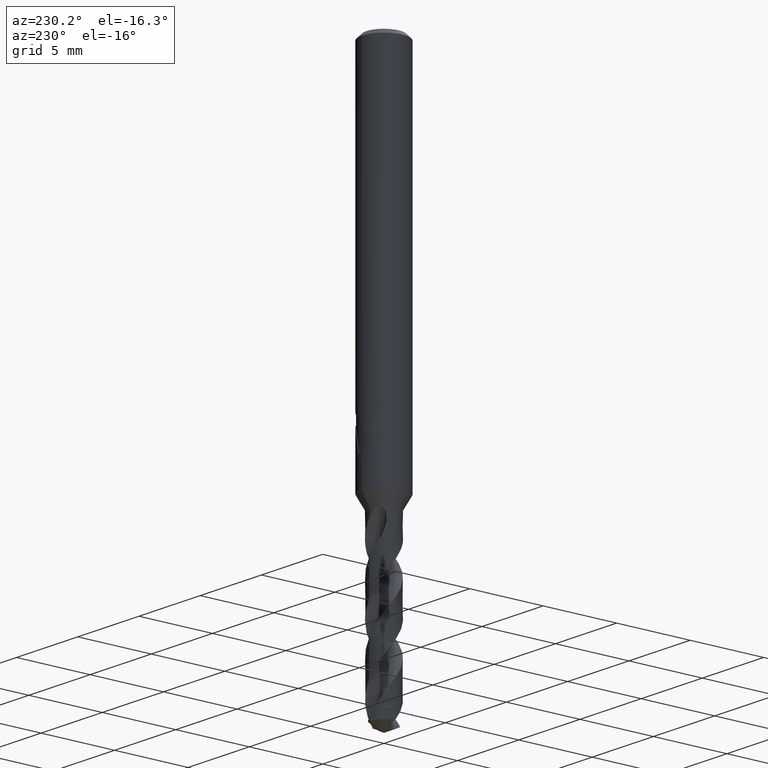
[diagram: clean part render]
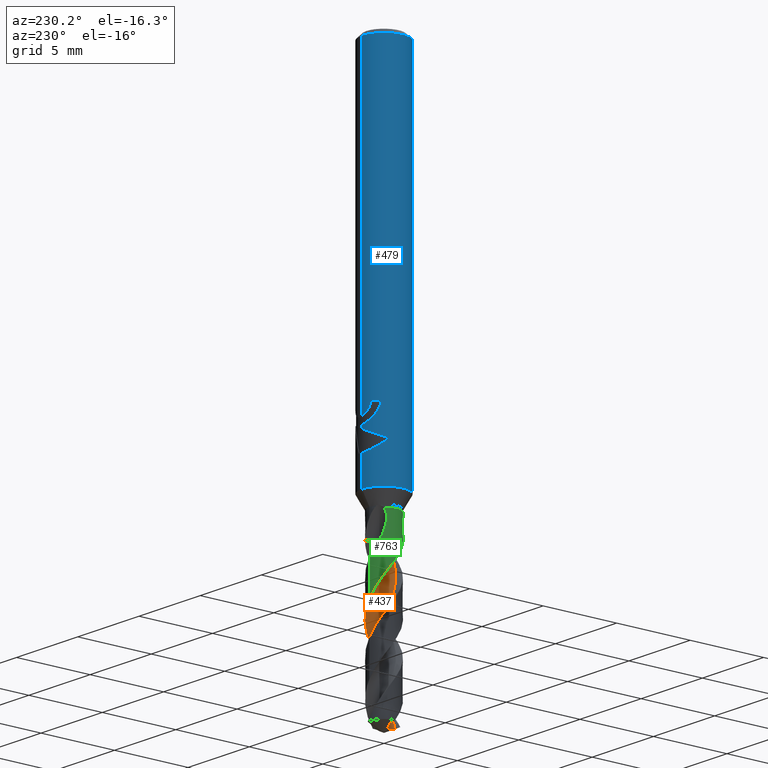
[diagram: same view with three faces highlighted in distinct colors, each labeled with its STEP entity id]
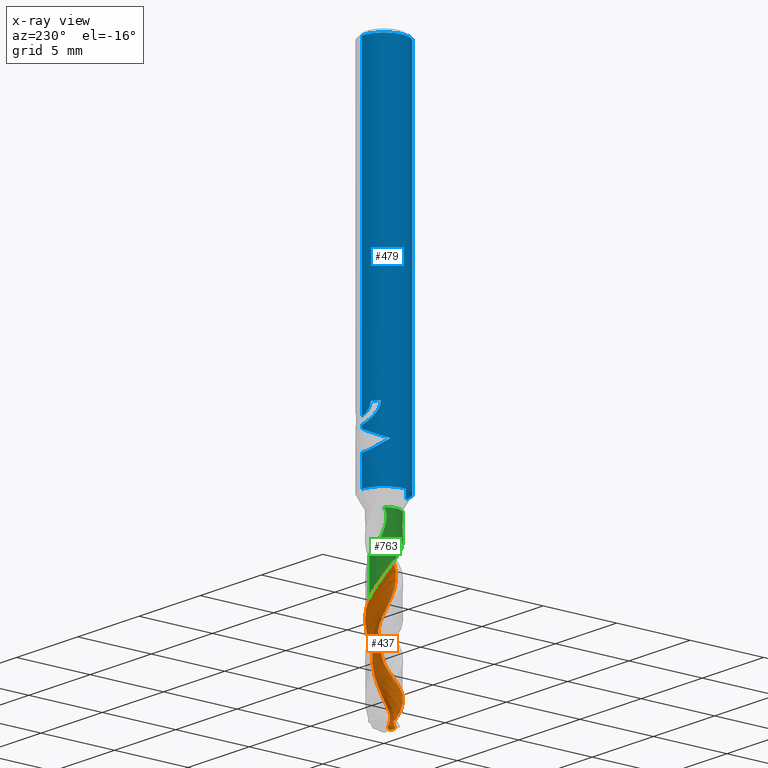
[diagram: x-ray of the same camera — body ghosted, the three highlighted faces saturated]
A machine part, auxiliary view with three faces highlighted in distinct colors.
The next image is the same camera in x-ray (body ghosted, the three faces saturated) — at least one of them is partly hidden behind the body in this view.
Their STEP definitions:

[orange] entity #437 — the highlighted face is a freeform B-spline surface patch.
#373=VERTEX_POINT('',#910);
#437=ADVANCED_FACE('',(#982),#983,.F.);
#443=EDGE_CURVE('',#457,#505,#989,.T.);
#457=VERTEX_POINT('',#1007);
#505=VERTEX_POINT('',#1058);
#523=EDGE_CURVE('',#747,#373,#1079,.T.);
#529=EDGE_CURVE('',#725,#575,#1085,.T.);
#561=EDGE_CURVE('',#373,#457,#1118,.T.);
#575=VERTEX_POINT('',#1133);
#591=EDGE_CURVE('',#575,#747,#1150,.T.);
#639=EDGE_CURVE('',#505,#641,#1205,.T.);
#641=VERTEX_POINT('',#1207);
#725=VERTEX_POINT('',#1297);
#741=EDGE_CURVE('',#641,#725,#1314,.T.);
#747=VERTEX_POINT('',#1320);
#910=CARTESIAN_POINT('',(-0.634005459942832,-0.766739279433663,-27.50944));
#982=FACE_OUTER_BOUND('',#2398,.T.);
#983=B_SPLINE_SURFACE_WITH_KNOTS('',3,3,((#2399,#2400,#2401,#2402,#2403,#2404,#2405,#2406,#2407,#2408,#2409,#2410,#2411,#2412,#2413,#2414,#2415,#2416,#2417,#2418,#2419,#2420,#2421,#2422,#2423,#2424,#2425,#2426,#2427,#2428,#2429,#2430,#2431,#2432,#2433,#2434,#2435,#2436,#2437,#2438,#2439,#2440,#2441,#2442,#2443,#2444,#2445,#2446,#2447,#2448,#2449,#2450,#2451),(#2452,#2453,#2454,#2455,#2456,#2457,#2458,#2459,#2460,#2461,#2462,#2463,#2464,#2465,#2466,#2467,#2468,#2469,#2470,#2471,#2472,#2473,#2474,#2475,#2476,#2477,#2478,#2479,#2480,#2481,#2482,#2483,#2484,#2485,#2486,#2487,#2488,#2489,#2490,#2491,#2492,#2493,#2494,#2495,#2496,#2497,#2498,#2499,#2500,#2501,#2502,#2503,#2504),(#2505,#2506,#2507,#2508,#2509,#2510,#2511,#2512,#2513,#2514,#2515,#2516,#2517,#2518,#2519,#2520,#2521,#2522,#2523,#2524,#2525,#2526,#2527,#2528,#2529,#2530,#2531,#2532,#2533,#2534,#2535,#2536,#2537,#2538,#2539,#2540,#2541,#2542,#2543,#2544,#2545,#2546,#2547,#2548,#2549,#2550,#2551,#2552,#2553,#2554,#2555,#2556,#2557),(#2558,#2559,#2560,#2561,#2562,#2563,#2564,#2565,#2566,#2567,#2568,#2569,#2570,#2571,#2572,#2573,#2574,#2575,#2576,#2577,#2578,#2579,#2580,#2581,#2582,#2583,#2584,#2585,#2586,#2587,#2588,#2589,#2590,#2591,#2592,#2593,#2594,#2595,#2596,#2597,#2598,#2599,#2600,#2601,#2602,#2603,#2604,#2605,#2606,#2607,#2608,#2609,#2610),(#2611,#2612,#2613,#2614,#2615,#2616,#2617,#2618,#2619,#2620,#2621,#2622,#2623,#2624,#2625,#2626,#2627,#2628,#2629,#2630,#2631,#2632,#2633,#2634,#2635,#2636,#2637,#2638,#2639,#2640,#2641,#2642,#2643,#2644,#2645,#2646,#2647,#2648,#2649,#2650,#2651,#2652,#2653,#2654,#2655,#2656,#2657,#2658,#2659,#2660,#2661,#2662,#2663),(#2664,#2665,#2666,#2667,#2668,#2669,#2670,#2671,#2672,#2673,#2674,#2675,#2676,#2677,#2678,#2679,#2680,#2681,#2682,#2683,#2684,#2685,#2686,#2687,#2688,#2689,#2690,#2691,#2692,#2693,#2694,#2695,#2696,#2697,#2698,#2699,#2700,#2701,#2702,#2703,#2704,#2705,#2706,#2707,#2708,#2709,#2710,#2711,#2712,#2713,#2714,#2715,#2716),(#2717,#2718,#2719,#2720,#2721,#2722,#2723,#2724,#2725,#2726,#2727,#2728,#2729,#2730,#2731,#2732,#2733,#2734,#2735,#2736,#2737,#2738,#2739,#2740,#2741,#2742,#2743,#2744,#2745,#2746,#2747,#2748,#2749,#2750,#2751,#2752,#2753,#2754,#2755,#2756,#2757,#2758,#2759,#2760,#2761,#2762,#2763,#2764,#2765,#2766,#2767,#2768,#2769),(#2770,#2771,#2772,#2773,#2774,#2775,#2776,#2777,#2778,#2779,#2780,#2781,#2782,#2783,#2784,#2785,#2786,#2787,#2788,#2789,#2790,#2791,#2792,#2793,#2794,#2795,#2796,#2797,#2798,#2799,#2800,#2801,#2802,#2803,#2804,#2805,#2806,#2807,#2808,#2809,#2810,#2811,#2812,#2813,#2814,#2815,#2816,#2817,#2818,#2819,#2820,#2821,#2822),(#2823,#2824,#2825,#2826,#2827,#2828,#2829,#2830,#2831,#2832,#2833,#2834,#2835,#2836,#2837,#2838,#2839,#2840,#2841,#2842,#2843,#2844,#2845,#2846,#2847,#2848,#2849,#2850,#2851,#2852,#2853,#2854,#2855,#2856,#2857,#2858,#2859,#2860,#2861,#2862,#2863,#2864,#2865,#2866,#2867,#2868,#2869,#2870,#2871,#2872,#2873,#2874,#2875)),.UNSPECIFIED.,.F.,.F.,.F.,(4,1,1,1,1,1,4),(4,1,2,2,2,2,1,2,1,2,1,2,1,2,1,2,1,2,1,2,1,2,1,2,1,2,1,2,1,2,1,2,1,4),(-2.21224020982019E-017,0.589055134037495,1.17811026807499,1.76716540211248,2.35622053614998,2.74892395884164,3.14162738153331),(0.0,0.231832086670922,0.463664173341845,0.927328346683689,1.39099252002553,1.85465669336738,2.31832086670922,2.78198504005107,3.24564921339291,3.70931338673476,4.1729775600766,4.63664173341845,5.10030590676029,5.56397008010214,6.02763425344398,6.49129842678583,6.95496260012767,7.41862677346952,7.88229094681136,8.3459551201532,8.80961929349505,9.27328346683689,9.73694764017874,10.2006118135206,10.6642759868624,11.1279401602043,11.5916043335461,12.055268506888,12.5189326802298,12.9825968535717,13.4462610269135,13.9099252002553,14.3735893735972,14.837253546939),.UNSPECIFIED.);
#989=CIRCLE('',#2883,0.66333333);
#1007=CARTESIAN_POINT('',(0.08731349126734,-0.30426451252211,-27.50944));
#1058=CARTESIAN_POINT('',(0.469047495759342,-0.492785834240654,-27.50944));
#1079=B_SPLINE_CURVE_WITH_KNOTS('',3,(#3691,#3692,#3693,#3694,#3695,#3696,#3697,#3698,#3699,#3700,#3701,#3702,#3703,#3704,#3705,#3706,#3707,#3708,#3709,#3710,#3711,#3712,#3713,#3714,#3715,#3716,#3717,#3718,#3719,#3720,#3721,#3722,#3723,#3724,#3725,#3726,#3727,#3728,#3729,#3730,#3731,#3732,#3733,#3734,#3735,#3736,#3737,#3738,#3739,#3740,#3741,#3742,#3743,#3744,#3745,#3746,#3747,#3748,#3749,#3750,#3751,#3752,#3753,#3754,#3755,#3756,#3757,#3758,#3759,#3760,#3761,#3762,#3763,#3764),.UNSPECIFIED.,.F.,.F.,(4,2,2,2,2,2,2,2,2,2,2,2,2,2,2,2,2,2,2,2,2,2,2,2,2,2,2,2,2,2,2,2,2,2,2,2,4),(0.0,0.394065663314509,0.93491008749126,1.2304526762553,1.7957347629561,1.91371425048618,2.34253315490839,2.82976313476347,3.39646551442066,3.64061765915583,4.20640153318087,4.45018543461153,5.01521049305684,5.26029582240104,5.82456864753564,6.06892440355678,6.63248318024895,6.87695048215618,7.43982395941511,7.68421629158725,8.24628924144704,8.48948028831005,9.05121097833391,9.29761745286515,9.85750227591252,10.0897894658747,10.6256899650108,11.3785419539876,11.5969102877428,11.7428120501677,11.9062506464748,11.9990011511052,12.0757684364258,12.1392512261981,12.2142866421866,12.3527592579681,12.6820964036575),.UNSPECIFIED.);
#1085=B_SPLINE_CURVE_WITH_KNOTS('',3,(#3773,#3774,#3775,#3776,#3777,#3778,#3779,#3780,#3781,#3782,#3783,#3784,#3785,#3786,#3787,#3788,#3789,#3790,#3791,#3792,#3793,#3794,#3795,#3796,#3797,#3798,#3799,#3800,#3801,#3802,#3803,#3804,#3805,#3806,#3807,#3808,#3809,#3810,#3811,#3812,#3813,#3814,#3815,#3816,#3817,#3818,#3819,#3820,#3821,#3822,#3823,#3824,#3825,#3826,#3827,#3828,#3829,#3830,#3831,#3832,#3833,#3834,#3835,#3836,#3837,#3838,#3839,#3840,#3841,#3842,#3843,#3844,#3845,#3846),.UNSPECIFIED.,.F.,.F.,(4,2,2,2,2,2,2,2,2,2,2,2,2,2,2,2,2,2,2,2,2,2,2,2,2,2,2,2,2,2,2,2,2,2,2,2,4),(0.0,0.394065663314509,0.93491008749126,1.2304526762553,1.7957347629561,1.91371425048618,2.34253315490839,2.82976313476347,3.39646551442066,3.64061765915583,4.20640153318087,4.45018543461153,5.01521049305684,5.26029582240104,5.82456864753564,6.06892440355678,6.63248318024895,6.87695048215618,7.43982395941511,7.68421629158725,8.24628924144704,8.48948028831005,9.05121097833391,9.29761745286515,9.85750227591252,10.0897894658747,10.6256899650108,11.3785419539876,11.5969102877428,11.7428120501677,11.9062506464748,11.9990011511052,12.0757684364258,12.1392512261981,12.2142866421866,12.3527592579681,12.6820964036575),.UNSPECIFIED.);
#1118=CIRCLE('',#3968,0.66333333);
#1133=CARTESIAN_POINT('',(3.55816381286294E-015,-0.994980257079837,-35.2584758952379));
#1150=B_SPLINE_CURVE_WITH_KNOTS('',3,(#4012,#4013,#4014,#4015,#4016,#4017,#4018,#4019,#4020,#4021,#4022,#4023,#4024,#4025,#4026,#4027,#4028,#4029,#4030,#4031,#4032,#4033,#4034,#4035,#4036,#4037,#4038,#4039,#4040,#4041,#4042,#4043,#4044,#4045,#4046,#4047,#4048,#4049,#4050,#4051,#4052,#4053,#4054,#4055,#4056,#4057,#4058,#4059,#4060,#4061,#4062,#4063,#4064,#4065,#4066,#4067,#4068,#4069,#4070,#4071,#4072,#4073,#4074,#4075,#4076,#4077,#4078,#4079,#4080,#4081,#4082,#4083,#4084,#4085),.UNSPECIFIED.,.F.,.F.,(4,2,2,2,2,2,2,2,2,2,2,2,2,2,2,2,2,2,2,2,2,2,2,2,2,2,2,2,2,2,2,2,2,2,2,2,4),(0.0,0.394065663314509,0.93491008749126,1.2304526762553,1.7957347629561,1.91371425048618,2.34253315490839,2.82976313476347,3.39646551442066,3.64061765915583,4.20640153318087,4.45018543461153,5.01521049305684,5.26029582240104,5.82456864753564,6.06892440355678,6.63248318024895,6.87695048215618,7.43982395941511,7.68421629158725,8.24628924144704,8.48948028831005,9.05121097833391,9.29761745286515,9.85750227591252,10.0897894658747,10.6256899650108,11.3785419539876,11.5969102877428,11.7428120501677,11.9062506464748,11.9990011511052,12.0757684364258,12.1392512261981,12.2142866421866,12.3527592579681,12.6820964036575),.UNSPECIFIED.);
#1205=B_SPLINE_CURVE_WITH_KNOTS('',3,(#4486,#4487,#4488,#4489,#4490,#4491,#4492,#4493,#4494,#4495,#4496,#4497,#4498,#4499,#4500,#4501,#4502,#4503,#4504,#4505,#4506,#4507,#4508,#4509,#4510,#4511,#4512,#4513,#4514,#4515,#4516,#4517,#4518,#4519,#4520,#4521,#4522,#4523,#4524,#4525,#4526,#4527,#4528,#4529,#4530,#4531,#4532,#4533,#4534,#4535,#4536,#4537,#4538),.UNSPECIFIED.,.F.,.F.,(4,1,2,2,2,2,1,2,1,2,1,2,1,2,1,2,1,2,1,2,1,2,1,2,1,2,1,2,1,2,1,2,1,4),(0.0,0.231832086670922,0.463664173341845,0.927328346683689,1.39099252002553,1.85465669336738,2.31832086670922,2.78198504005107,3.24564921339291,3.70931338673476,4.1729775600766,4.63664173341845,5.10030590676029,5.56397008010214,6.02763425344398,6.49129842678583,6.95496260012767,7.41862677346952,7.88229094681136,8.3459551201532,8.80961929349505,9.27328346683689,9.73694764017874,10.2006118135206,10.6642759868624,11.1279401602043,11.5916043335461,12.055268506888,12.5189326802298,12.9825968535717,13.4462610269135,13.9099252002553,14.3735893735972,14.837253546939),.UNSPECIFIED.);
#1207=CARTESIAN_POINT('',(-0.194011570796926,-0.595650844553217,-37.7078812639521));
#1297=CARTESIAN_POINT('',(-0.992945647726752,0.0639057169625706,-37.5360238801358));
#1314=B_SPLINE_CURVE_WITH_KNOTS('',3,(#4846,#4847,#4848,#4849,#4850,#4851,#4852,#4853,#4854,#4855,#4856,#4857,#4858,#4859,#4860,#4861,#4862,#4863,#4864,#4865),.UNSPECIFIED.,.F.,.F.,(4,2,2,2,2,2,2,2,2,4),(0.0,0.363573521763142,0.6632729538185,1.00955287219476,1.40543816925078,1.87232061437884,2.42786681763556,3.0823949644317,3.83600489232673,4.63797638924621),.UNSPECIFIED.);
#1320=CARTESIAN_POINT('',(-1.16072017648734E-014,0.994942360668589,-30.8867368443555));
#2398=EDGE_LOOP('',(#5483,#5484,#5485,#5486,#5487,#5488,#5489));
#2399=CARTESIAN_POINT('',(-0.469047495759345,-1.43088082575934,-27.50944));
#2400=CARTESIAN_POINT('',(-0.523852125290527,-1.4254915773925,-27.5639561534519));
#2401=CARTESIAN_POINT('',(-0.634597521068751,-1.40356857213399,-27.6739877392295));
#2402=CARTESIAN_POINT('',(-0.742897870540587,-1.35124856388881,-27.7843322648949));
#2403=CARTESIAN_POINT('',(-0.896680598547946,-1.24512028274347,-27.9471800313369));
#2404=CARTESIAN_POINT('',(-0.990097844429725,-1.16682402625766,-28.0552036112662));
#2405=CARTESIAN_POINT('',(-1.16245906029882,-1.0022086248497,-28.2752565461716));
#2406=CARTESIAN_POINT('',(-1.23868271218038,-0.90898080158957,-28.385110506646));
#2407=CARTESIAN_POINT('',(-1.36428033174522,-0.703300568858309,-28.6030832715631));
#2408=CARTESIAN_POINT('',(-1.41544920999945,-0.59351907270835,-28.7122363083211));
#2409=CARTESIAN_POINT('',(-1.49005410778,-0.364554127049469,-28.9310896328373));
#2410=CARTESIAN_POINT('',(-1.53875589603047,-0.127997634077217,-29.149763295509));
#2411=CARTESIAN_POINT('',(-1.53145675254522,0.113651215975207,-29.3686492639029));
#2412=CARTESIAN_POINT('',(-1.49347070300843,0.351550548774314,-29.5872259091766));
#2413=CARTESIAN_POINT('',(-1.42905799914967,0.584432666251426,-29.8056367481347));
#2414=CARTESIAN_POINT('',(-1.31279313376343,0.796532936136183,-30.0244764497449));
#2415=CARTESIAN_POINT('',(-1.17100089661691,0.991345777900406,-30.2431680658366));
#2416=CARTESIAN_POINT('',(-1.00790433968133,1.16962992239729,-30.4616689555733));
#2417=CARTESIAN_POINT('',(-0.808018266807519,1.30576436217012,-30.6805170586919));
#2418=CARTESIAN_POINT('',(-0.593241505882129,1.41492959367733,-30.8991738172173));
#2419=CARTESIAN_POINT('',(-0.366986532249099,1.49972243381461,-31.1176496915035));
#2420=CARTESIAN_POINT('',(-0.127076636072798,1.53028128971307,-31.3364963165459));
#2421=CARTESIAN_POINT('',(0.113857127962474,1.53003803105181,-31.5551618378102));
#2422=CARTESIAN_POINT('',(0.353948854195119,1.50286134335859,-31.7736440461303));
#2423=CARTESIAN_POINT('',(0.581577077886675,1.42115776499247,-31.9924910953264));
#2424=CARTESIAN_POINT('',(0.79613305127607,1.31154705697549,-32.2111543791463));
#2425=CARTESIAN_POINT('',(0.997711173316868,1.17832213016801,-32.429635040245));
#2426=CARTESIAN_POINT('',(1.163428095229,1.00217331118689,-32.6484823066649));
#2427=CARTESIAN_POINT('',(1.30482548961338,0.807094299374426,-32.8671465757887));
#2428=CARTESIAN_POINT('',(1.42393742316172,0.596869055335962,-33.0856271874641));
#2429=CARTESIAN_POINT('',(1.49161351712876,0.364684787840438,-33.3044734256718));
#2430=CARTESIAN_POINT('',(1.52903163594536,0.126676478547412,-33.5231369506596));
#2431=CARTESIAN_POINT('',(1.53971700466936,-0.114711660338102,-33.7416185276406));
#2432=CARTESIAN_POINT('',(1.494592760544,-0.352313659762754,-33.9604663859121));
#2433=CARTESIAN_POINT('',(1.41985616150219,-0.581364375696952,-34.1791303186505));
#2434=CARTESIAN_POINT('',(1.31976826449274,-0.801285163870561,-34.3976103871286));
#2435=CARTESIAN_POINT('',(1.17168762767214,-0.992496059397506,-34.6164567278605));
#2436=CARTESIAN_POINT('',(1.00111362925789,-1.1626490445742,-34.8351210342784));
#2437=CARTESIAN_POINT('',(0.812093026409668,-1.31315868956556,-35.0536025404237));
#2438=CARTESIAN_POINT('',(0.59333450208152,-1.41628918130084,-35.2724485443002));
#2439=CARTESIAN_POINT('',(0.364090164073692,-1.49043809364499,-35.4911101164129));
#2440=CARTESIAN_POINT('',(0.127334014933388,-1.53871551780201,-35.7095918186254));
#2441=CARTESIAN_POINT('',(-0.114396061045232,-1.53128728057108,-35.9284461087559));
#2442=CARTESIAN_POINT('',(-0.352299998586033,-1.49327329489971,-36.1471191872444));
#2443=CARTESIAN_POINT('',(-0.585141180595715,-1.42877950974381,-36.3655928798263));
#2444=CARTESIAN_POINT('',(-0.797149716344138,-1.31241637180286,-36.5844106876538));
#2445=CARTESIAN_POINT('',(-0.991928956717993,-1.17057668113497,-36.8030458400653));
#2446=CARTESIAN_POINT('',(-1.17024297016781,-1.00742590872968,-37.021561389749));
#2447=CARTESIAN_POINT('',(-1.30620054752293,-0.807319103485255,-37.240489741694));
#2448=CARTESIAN_POINT('',(-1.41486869356382,-0.592245149370943,-37.4591996323837));
#2449=CARTESIAN_POINT('',(-1.49915842727031,-0.366047120618607,-37.6775305817545));
#2450=CARTESIAN_POINT('',(-1.53043911075727,-0.12682470517416,-37.8961175438895));
#2451=CARTESIAN_POINT('',(-1.5312166262937,-0.00672584469895976,-38.005373557082));
#2452=CARTESIAN_POINT('',(-0.561142768458453,-1.33877954161602,-27.5094400000001));
#2453=CARTESIAN_POINT('',(-0.615499082124059,-1.33294200930681,-27.5639432191229));
#2454=CARTESIAN_POINT('',(-0.723345342924651,-1.30806114549102,-27.674125572907));
#2455=CARTESIAN_POINT('',(-0.824012957540656,-1.24913673116973,-27.7846628758046));
#2456=CARTESIAN_POINT('',(-0.961922774729995,-1.13164368319929,-27.9472561576524));
#2457=CARTESIAN_POINT('',(-1.04547515733607,-1.04856200983023,-28.0550141588977));
#2458=CARTESIAN_POINT('',(-1.20028452121202,-0.877221840536945,-28.2753619260376));
#2459=CARTESIAN_POINT('',(-1.26687201991613,-0.781387861899828,-28.38532279746));
#2460=CARTESIAN_POINT('',(-1.3716541441098,-0.572839386719333,-28.6031500390782));
#2461=CARTESIAN_POINT('',(-1.41252373341492,-0.462895949096873,-28.7122662464919));
#2462=CARTESIAN_POINT('',(-1.46657551454579,-0.236025638084384,-28.9311595621025));
#2463=CARTESIAN_POINT('',(-1.49547255532332,-0.00392227197587784,-29.1498353257426));
#2464=CARTESIAN_POINT('',(-1.46978533728727,0.228846215236473,-29.3687673349535));
#2465=CARTESIAN_POINT('',(-1.41423669204213,0.455449950615468,-29.5873256544571));
#2466=CARTESIAN_POINT('',(-1.33411439291679,0.675289056065851,-29.8056837185899));
#2467=CARTESIAN_POINT('',(-1.20552149848313,0.871136400752534,-30.0245601342631));
#2468=CARTESIAN_POINT('',(-1.05323092925351,1.04794059934313,-30.2432575642519));
#2469=CARTESIAN_POINT('',(-0.882061217220609,1.20748241188952,-30.4617244734421));
#2470=CARTESIAN_POINT('',(-0.67856819108119,1.32352922047969,-30.6806109588497));
#2471=CARTESIAN_POINT('',(-0.462614299959827,1.41187921941359,-30.8992662160582));
#2472=CARTESIAN_POINT('',(-0.237676791463445,1.47630960329388,-31.1177028906215));
#2473=CARTESIAN_POINT('',(-0.00367217040927578,1.48733661761516,-31.3365876125807));
#2474=CARTESIAN_POINT('',(0.228860117168054,1.46801320673573,-31.5552534707653));
#2475=CARTESIAN_POINT('',(0.458532752766075,1.42329111474783,-31.7736978013031));
#2476=CARTESIAN_POINT('',(0.672030445142194,1.32686512662339,-31.992583031228));
#2477=CARTESIAN_POINT('',(0.870437330925706,1.20406847042738,-32.2112461802797));
#2478=CARTESIAN_POINT('',(1.05476578196406,1.0599414500307,-32.4296886426655));
#2479=CARTESIAN_POINT('',(1.20120805800968,0.877090973323785,-32.648574136388));
#2480=CARTESIAN_POINT('',(1.32222963804178,0.677595759536329,-32.8672384755912));
#2481=CARTESIAN_POINT('',(1.4210223752754,0.465489062188738,-33.0856808770378));
#2482=CARTESIAN_POINT('',(1.46848341262782,0.23608503602631,-33.3045651275933));
#2483=CARTESIAN_POINT('',(1.48574360885446,0.00339264342882482,-33.5232285717202));
#2484=CARTESIAN_POINT('',(1.47747125095764,-0.230447044215444,-33.7416721457212));
#2485=CARTESIAN_POINT('',(1.41559629315142,-0.456392897200152,-33.9605583534288));
#2486=CARTESIAN_POINT('',(1.32531069596129,-0.671552754869001,-34.1792222753857));
#2487=CARTESIAN_POINT('',(1.21175849357654,-0.876138977718857,-34.3976640043086));
#2488=CARTESIAN_POINT('',(1.05404700170778,-1.04936060196218,-34.6165483765368));
#2489=CARTESIAN_POINT('',(0.875927230665374,-1.20008055535795,-34.8352128123321));
#2490=CARTESIAN_POINT('',(0.681872229021141,-1.33081563741838,-35.0536563642879));
#2491=CARTESIAN_POINT('',(0.46269995273771,-1.41354288128012,-35.2725403129469));
#2492=CARTESIAN_POINT('',(0.23555612391899,-1.46694793155639,-35.4912012435634));
#2493=CARTESIAN_POINT('',(0.0032934210934245,-1.49532096290996,-35.7096446809548));
#2494=CARTESIAN_POINT('',(-0.229542745976684,-1.46952844601472,-35.9285387383457));
#2495=CARTESIAN_POINT('',(-0.456157700854035,-1.41398679518621,-36.1472142965678));
#2496=CARTESIAN_POINT('',(-0.675955672496533,-1.33379532628264,-36.365649398244));
#2497=CARTESIAN_POINT('',(-0.871703243010514,-1.20511057932575,-36.5844990734332));
#2498=CARTESIAN_POINT('',(-1.04847925856334,-1.0527858258447,-36.8031262475715));
#2499=CARTESIAN_POINT('',(-1.20805863245395,-0.881570534998455,-37.0216071166151));
#2500=CARTESIAN_POINT('',(-1.32388227226069,-0.67785389990119,-37.2405914957839));
#2501=CARTESIAN_POINT('',(-1.41164121999842,-0.461618505296414,-37.4593182917876));
#2502=CARTESIAN_POINT('',(-1.4755733689671,-0.23678363045109,-37.6775935708706));
#2503=CARTESIAN_POINT('',(-1.48758774662896,-0.00340491744386972,-37.8961929066577));
#2504=CARTESIAN_POINT('',(-1.47899703159219,0.112594286289383,-38.005451431928));
#2505=CARTESIAN_POINT('',(-0.689268199729617,-1.09893899993785,-27.50944));
#2506=CARTESIAN_POINT('',(-0.742457057369352,-1.09247780495028,-27.5639243805621));
#2507=CARTESIAN_POINT('',(-0.842717965906323,-1.06344619311602,-27.6743263262273));
#2508=CARTESIAN_POINT('',(-0.924132741057472,-0.995956501126523,-27.785144406537));
#2509=CARTESIAN_POINT('',(-1.02344096113328,-0.865386366303798,-27.9473670355054));
#2510=CARTESIAN_POINT('',(-1.08438434067227,-0.778727122781395,-28.0547382229355));
#2511=CARTESIAN_POINT('',(-1.20005219746149,-0.604597022333362,-28.2755154113387));
#2512=CARTESIAN_POINT('',(-1.24580910769442,-0.50940020910919,-28.3856319967081));
#2513=CARTESIAN_POINT('',(-1.30726867687434,-0.30774524356664,-28.6032472851678));
#2514=CARTESIAN_POINT('',(-1.32746517134638,-0.203724130093772,-28.7123098516384));
#2515=CARTESIAN_POINT('',(-1.34172822483183,0.00649762811195538,-28.9312614127614));
#2516=CARTESIAN_POINT('',(-1.33376183372906,0.217694703793919,-29.1499402368521));
#2517=CARTESIAN_POINT('',(-1.27672607186597,0.421571751908712,-29.3689393048986));
#2518=CARTESIAN_POINT('',(-1.19294265525482,0.614959685580923,-29.5874709315642));
#2519=CARTESIAN_POINT('',(-1.08934703819332,0.799215890765287,-29.8057521298551));
#2520=CARTESIAN_POINT('',(-0.945982740001201,0.955118625982923,-30.0246820219681));
#2521=CARTESIAN_POINT('',(-0.7836406944514,1.08958039099203,-30.2433879155562));
#2522=CARTESIAN_POINT('',(-0.607709247322405,1.20678478514527,-30.4618053367044));
#2523=CARTESIAN_POINT('',(-0.409192410764145,1.28051513294998,-30.680747721306));
#2524=CARTESIAN_POINT('',(-0.203510033608249,1.32656866811968,-30.8994007960079));
#2525=CARTESIAN_POINT('',(0.00644705333067126,1.35111991288368,-31.1177803748927));
#2526=CARTESIAN_POINT('',(0.21680994686355,1.32670929903033,-31.3367205814623));
#2527=CARTESIAN_POINT('',(0.420987737849274,1.27436439086934,-31.5553869359092));
#2528=CARTESIAN_POINT('',(0.619205990971724,1.20091033591326,-31.7737760964435));
#2529=CARTESIAN_POINT('',(0.795546948842866,1.08364259474951,-31.9927169294194));
#2530=CARTESIAN_POINT('',(0.953696374902964,0.944297714522434,-32.2113798930246));
#2531=CARTESIAN_POINT('',(1.09695372458015,0.788852387116899,-32.4297667142014));
#2532=CARTESIAN_POINT('',(1.20082691598065,0.604302781921109,-32.6487078795015));
#2533=CARTESIAN_POINT('',(1.27846556870218,0.408341909223809,-32.8673723324707));
#2534=CARTESIAN_POINT('',(1.33552565414033,0.204798913020256,-33.0857590751515));
#2535=CARTESIAN_POINT('',(1.34428907697925,-0.00679194286949952,-33.3046986848798));
#2536=CARTESIAN_POINT('',(1.32450352608075,-0.216640269307143,-33.5233620223083));
#2537=CARTESIAN_POINT('',(1.2829369479602,-0.423903768791591,-33.7417502406382));
#2538=CARTESIAN_POINT('',(1.19466774511213,-0.616405941193758,-33.9606922959935));
#2539=CARTESIAN_POINT('',(1.08174378701856,-0.794386568670894,-34.179356216435));
#2540=CARTESIAN_POINT('',(0.950593357595796,-0.960173685178308,-34.397742088857));
#2541=CARTESIAN_POINT('',(0.784551584141752,-1.09161765407755,-34.6166818712636));
#2542=CARTESIAN_POINT('',(0.603142469731279,-1.19894020198069,-34.8353464765942));
#2543=CARTESIAN_POINT('',(0.411022244617379,-1.28711858506249,-35.0537347649495));
#2544=CARTESIAN_POINT('',(0.203396616694713,-1.3288353264649,-35.272673968784));
#2545=CARTESIAN_POINT('',(-0.006971231077185,-1.34207415883237,-35.4913339734098));
#2546=CARTESIAN_POINT('',(-0.218186642813518,-1.33340915437084,-35.7097216719394));
#2547=CARTESIAN_POINT('',(-0.422118733506307,-1.27632385777174,-35.928673652953));
#2548=CARTESIAN_POINT('',(-0.615552299298238,-1.19261319041529,-36.1473528215895));
#2549=CARTESIAN_POINT('',(-0.79977420456236,-1.08897231529897,-36.3657317165778));
#2550=CARTESIAN_POINT('',(-0.955564993688452,-0.945533865957739,-36.5846278072178));
#2551=CARTESIAN_POINT('',(-1.0900174443055,-0.783180867393847,-36.8032433593233));
#2552=CARTESIAN_POINT('',(-1.20728000684514,-0.607216430785163,-37.0216737184545));
#2553=CARTESIAN_POINT('',(-1.28069293342443,-0.408498306328222,-37.2407396979885));
#2554=CARTESIAN_POINT('',(-1.32597721749396,-0.202622738836339,-37.4594911193846));
#2555=CARTESIAN_POINT('',(-1.35006766194035,0.00714337796110105,-37.6776853059699));
#2556=CARTESIAN_POINT('',(-1.32713754252817,0.217164383840642,-37.8963026858627));
#2557=CARTESIAN_POINT('',(-1.30231807554802,0.319292484629576,-38.0055648557635));
#2558=CARTESIAN_POINT('',(-0.649281538129694,-0.692894558404914,-27.50944));
#2559=CARTESIAN_POINT('',(-0.700493924262718,-0.68662800973398,-27.5639266260167));
#2560=CARTESIAN_POINT('',(-0.787830834467493,-0.6587381375327,-27.6743023976468));
#2561=CARTESIAN_POINT('',(-0.838085077470838,-0.596603381073748,-27.7850870112438));
#2562=CARTESIAN_POINT('',(-0.878327327907892,-0.481883803571485,-27.9473538193588));
#2563=CARTESIAN_POINT('',(-0.908078053152015,-0.409600586439513,-28.0547711129317));
#2564=CARTESIAN_POINT('',(-0.972579683649653,-0.264606667180035,-28.2754971166824));
#2565=CARTESIAN_POINT('',(-0.992875163558193,-0.187562818339841,-28.3855951419489));
#2566=CARTESIAN_POINT('',(-1.00602068566855,-0.0306114608930301,-28.6032356942287));
#2567=CARTESIAN_POINT('',(-1.00535626732121,0.0487925072997061,-28.7123046543033));
#2568=CARTESIAN_POINT('',(-0.983844036376431,0.205083507116479,-28.93124927269));
#2569=CARTESIAN_POINT('',(-0.947300613076539,0.359474621758985,-29.1499277322832));
#2570=CARTESIAN_POINT('',(-0.875223452216467,0.501177500289704,-29.3689188069606));
#2571=CARTESIAN_POINT('',(-0.783887644766876,0.629589881612477,-29.587453615672));
#2572=CARTESIAN_POINT('',(-0.680653614751424,0.74988459730481,-29.8057439757619));
#2573=CARTESIAN_POINT('',(-0.552143828908116,0.843634841799309,-30.0246674933271));
#2574=CARTESIAN_POINT('',(-0.41254404603617,0.916885225711613,-30.2433723789129));
#2575=CARTESIAN_POINT('',(-0.265951344708594,0.977292479553329,-30.4617956978186));
#2576=CARTESIAN_POINT('',(-0.10890674511146,1.00236666770683,-30.6807314206879));
#2577=CARTESIAN_POINT('',(0.0487124196951806,1.00420163492467,-30.8993847543389));
#2578=CARTESIAN_POINT('',(0.206744794269686,0.991474684253285,-31.117771139464));
#2579=CARTESIAN_POINT('',(0.358076636283643,0.942545639367971,-31.3367047326059));
#2580=CARTESIAN_POINT('',(0.499356056407469,0.872624399512268,-31.5553710275248));
#2581=CARTESIAN_POINT('',(0.634382337834305,0.789529754864588,-31.7737667643023));
#2582=CARTESIAN_POINT('',(0.746991037461214,0.677218702787935,-31.9927009695098));
#2583=CARTESIAN_POINT('',(0.841116881998653,0.550771941261184,-32.2113639554114));
#2584=CARTESIAN_POINT('',(0.923693510061512,0.415428757592146,-32.4297574090066));
#2585=CARTESIAN_POINT('',(0.973032675459814,0.264232383121754,-32.6486919372084));
#2586=CARTESIAN_POINT('',(0.999482874243807,0.108833365609519,-32.8673563785486));
#2587=CARTESIAN_POINT('',(1.01160476254825,-0.0492472083540353,-33.0857497544502));
#2588=CARTESIAN_POINT('',(0.986924896161737,-0.206363352619912,-33.3046827647011));
#2589=CARTESIAN_POINT('',(0.939949581235314,-0.356835809422978,-33.5233461168467));
#2590=CARTESIAN_POINT('',(0.878984496566465,-0.503192597076866,-33.74174093127));
#2591=CARTESIAN_POINT('',(0.785649388767234,-0.631968724443891,-33.9606763317942));
#2592=CARTESIAN_POINT('',(0.675459074592464,-0.744691814257471,-34.1793402506125));
#2593=CARTESIAN_POINT('',(0.554681342489987,-0.847400062497699,-34.3977327832736));
#2594=CARTESIAN_POINT('',(0.413058871455316,-0.91977172672275,-34.616665957246));
#2595=CARTESIAN_POINT('',(0.263709014208233,-0.970201470662953,-34.8353305469586));
#2596=CARTESIAN_POINT('',(0.109466252741849,-1.00688940662158,-35.0537254185409));
#2597=CARTESIAN_POINT('',(-0.0495767228296592,-1.00705483042863,-35.2726580386601));
#2598=CARTESIAN_POINT('',(-0.205540189858025,-0.984153515943778,-35.4913181520554));
#2599=CARTESIAN_POINT('',(-0.35962811958384,-0.946811102770614,-35.7097124964105));
#2600=CARTESIAN_POINT('',(-0.501416712718713,-0.874764544704309,-35.9286575701801));
#2601=CARTESIAN_POINT('',(-0.629972514225841,-0.783554846724955,-36.1473363120968));
#2602=CARTESIAN_POINT('',(-0.750261404572069,-0.680299684124869,-36.3657219071794));
#2603=CARTESIAN_POINT('',(-0.843899257974041,-0.551747979933576,-36.5846124563036));
#2604=CARTESIAN_POINT('',(-0.917183212497881,-0.412150531019317,-36.8032294070082));
#2605=CARTESIAN_POINT('',(-0.977684845112654,-0.265523379264835,-37.0216657764615));
#2606=CARTESIAN_POINT('',(-1.0023426183791,-0.108383853173686,-37.2407220335235));
#2607=CARTESIAN_POINT('',(-1.00325956955814,0.0491698552880016,-37.45947051914));
#2608=CARTESIAN_POINT('',(-0.990192122746427,0.206932173987749,-37.6776743745726));
#2609=CARTESIAN_POINT('',(-0.943122242772385,0.35868742247165,-37.8962895954883));
#2610=CARTESIAN_POINT('',(-0.909611372710626,0.429983346806022,-38.0055513363653));
#2611=CARTESIAN_POINT('',(-0.390445585406172,-0.377498028329852,-27.50944));
#2612=CARTESIAN_POINT('',(-0.440122743465846,-0.372491400600334,-27.5639586387545));
#2613=CARTESIAN_POINT('',(-0.517348032420774,-0.352731163236963,-27.6739612546614));
#2614=CARTESIAN_POINT('',(-0.544669715082026,-0.312360645241614,-27.7842687385067));
#2615=CARTESIAN_POINT('',(-0.54460530849018,-0.243636042299948,-27.9471654036824));
#2616=CARTESIAN_POINT('',(-0.556407810200269,-0.200635833101241,-28.0552400144795));
#2617=CARTESIAN_POINT('',(-0.594553546511334,-0.108294489945377,-28.2752362973743));
#2618=CARTESIAN_POINT('',(-0.603764560737856,-0.0604896325611893,-28.3850697149945));
#2619=CARTESIAN_POINT('',(-0.601574425171802,0.0324498164557391,-28.6030704425402));
#2620=CARTESIAN_POINT('',(-0.597241578133783,0.079795645888252,-28.7122305560308));
#2621=CARTESIAN_POINT('',(-0.575946057171227,0.171369215618219,-28.9310761957372));
#2622=CARTESIAN_POINT('',(-0.547201811383543,0.262651407753717,-29.1497494552634));
#2623=CARTESIAN_POINT('',(-0.497160706976996,0.3443020563665,-29.3686265764708));
#2624=CARTESIAN_POINT('',(-0.435644144144554,0.414493508038159,-29.5872067434998));
#2625=CARTESIAN_POINT('',(-0.368246194277106,0.481807206100564,-29.8056277227375));
#2626=CARTESIAN_POINT('',(-0.28661782650661,0.532132641037821,-30.0244603698163));
#2627=CARTESIAN_POINT('',(-0.199934997791474,0.567122898436258,-30.2431508689027));
#2628=CARTESIAN_POINT('',(-0.109291592019697,0.596605090164277,-30.4616582878608));
#2629=CARTESIAN_POINT('',(-0.0137618737364976,0.604264357563562,-30.6804990159011));
#2630=CARTESIAN_POINT('',(0.0793276154814912,0.596035826312971,-30.8991560629123));
#2631=CARTESIAN_POINT('',(0.173475445550531,0.581161372956491,-31.1176394695097));
#2632=CARTESIAN_POINT('',(0.262103201756602,0.544642331226625,-31.3364787738465));
#2633=CARTESIAN_POINT('',(0.341319790108582,0.495051754885784,-31.555144230956));
#2634=CARTESIAN_POINT('',(0.418447948425166,0.439049185419428,-31.7736337176751));
#2635=CARTESIAN_POINT('',(0.480819332959152,0.366267536606873,-31.9924734286205));
#2636=CARTESIAN_POINT('',(0.528877625613852,0.28611504639146,-32.2111367410326));
#2637=CARTESIAN_POINT('',(0.572168483091872,0.201198855269739,-32.4296247406827));
#2638=CARTESIAN_POINT('',(0.594694768758873,0.108032293974053,-32.6484646602242));
#2639=CARTESIAN_POINT('',(0.601118676432917,0.0147981245507293,-32.8671289188526));
#2640=CARTESIAN_POINT('',(0.601133736614074,-0.0805153800977521,-33.0856168703));
#2641=CARTESIAN_POINT('',(0.578911773717355,-0.173757441275913,-33.3044558053613));
#2642=CARTESIAN_POINT('',(0.542316867141607,-0.259754918735771,-33.5231193457109));
#2643=CARTESIAN_POINT('',(0.499060834983523,-0.344692442788197,-33.7416082248442));
#2644=CARTESIAN_POINT('',(0.436918243465338,-0.417668112142208,-33.9604487148816));
#2645=CARTESIAN_POINT('',(0.365256343103912,-0.477650526018029,-34.179112648889));
#2646=CARTESIAN_POINT('',(0.288148238167649,-0.533673581854166,-34.3976000861962));
#2647=CARTESIAN_POINT('',(0.199648691570886,-0.570495472964132,-34.6164391150241));
#2648=CARTESIAN_POINT('',(0.108563257207489,-0.591432120283496,-34.8351034019194));
#2649=CARTESIAN_POINT('',(0.0144211910162661,-0.60635123040491,-35.0535921973368));
#2650=CARTESIAN_POINT('',(-0.0811421198879199,-0.598959531968677,-35.2724309102252));
#2651=CARTESIAN_POINT('',(-0.171791616365925,-0.5762346507699,-35.491092607311));
#2652=CARTESIAN_POINT('',(-0.262447458309253,-0.546786540065813,-35.7095816638028));
#2653=CARTESIAN_POINT('',(-0.344253809911041,-0.496825632968403,-35.9284283040531));
#2654=CARTESIAN_POINT('',(-0.414699686722335,-0.435425237381841,-36.1471009181677));
#2655=CARTESIAN_POINT('',(-0.482044665282746,-0.368010391568878,-36.3655820164523));
#2656=CARTESIAN_POINT('',(-0.532275239553434,-0.286367151727737,-36.5843937052652));
#2657=CARTESIAN_POINT('',(-0.567342079380294,-0.199673885503265,-36.8030303890544));
#2658=CARTESIAN_POINT('',(-0.596947950014848,-0.10897470345595,-37.0215526044557));
#2659=CARTESIAN_POINT('',(-0.604167613581373,-0.0134934725911742,-37.2404701884851));
#2660=CARTESIAN_POINT('',(-0.595041101955527,0.079232891983972,-37.4591768334442));
#2661=CARTESIAN_POINT('',(-0.579970072559391,0.173111713627641,-37.6775184781966));
#2662=CARTESIAN_POINT('',(-0.545199855582323,0.263009529772883,-37.8961030623137));
#2663=CARTESIAN_POINT('',(-0.521591981496932,0.303840822261731,-38.0053585935372));
#2664=CARTESIAN_POINT('',(-0.0434802224347033,-0.272399676660132,-27.50944));
#2665=CARTESIAN_POINT('',(-0.0926458063970926,-0.269081947895824,-27.5640039519547));
#2666=CARTESIAN_POINT('',(-0.166418245990846,-0.260320867030096,-27.6734783761644));
#2667=CARTESIAN_POINT('',(-0.187553570030741,-0.247353327706208,-27.7831104960064));
#2668=CARTESIAN_POINT('',(-0.180436896534152,-0.232509285143443,-27.9468987065378));
#2669=CARTESIAN_POINT('',(-0.193447624021701,-0.220003090098119,-28.055903731038));
#2670=CARTESIAN_POINT('',(-0.238134515167272,-0.179569172183175,-28.2748671154831));
#2671=CARTESIAN_POINT('',(-0.253601742007712,-0.15883528585759,-28.384325988372));
#2672=CARTESIAN_POINT('',(-0.271703035208361,-0.120749805966086,-28.602836532604));
#2673=CARTESIAN_POINT('',(-0.28049585155627,-0.0988940160300265,-28.7121256710268));
#2674=CARTESIAN_POINT('',(-0.291327635198229,-0.0550133937088626,-28.9308312110304));
#2675=CARTESIAN_POINT('',(-0.299516513037015,-0.0064907651584163,-29.1494971083024));
#2676=CARTESIAN_POINT('',(-0.295414033327796,0.0416903678988154,-29.3682129328521));
#2677=CARTESIAN_POINT('',(-0.284680047093409,0.0836093114078539,-29.5868573021781));
#2678=CARTESIAN_POINT('',(-0.269920403541065,0.129492641256632,-29.8054631700835));
#2679=CARTESIAN_POINT('',(-0.244368175022308,0.170901858286441,-30.0241671921882));
#2680=CARTESIAN_POINT('',(-0.215668174880154,0.203771722413939,-30.2428373276107));
#2681=CARTESIAN_POINT('',(-0.181624104616896,0.238048923674793,-30.4614637876697));
#2682=CARTESIAN_POINT('',(-0.140131105647066,0.263230979232559,-30.680170053705));
#2683=CARTESIAN_POINT('',(-0.0996738076040074,0.279444050325244,-30.8988323561421));
#2684=CARTESIAN_POINT('',(-0.0537715935595837,0.29453919462044,-31.1174530936314));
#2685=CARTESIAN_POINT('',(-0.0053268362637255,0.298158893631302,-31.336158937208));
#2686=CARTESIAN_POINT('',(0.0380927707035701,0.294240414277349,-31.5548232049214));
#2687=CARTESIAN_POINT('',(0.0858397321454231,0.286846684997048,-31.7734453921026));
#2688=CARTESIAN_POINT('',(0.130631682056294,0.268076055214852,-31.9921513560093));
#2689=CARTESIAN_POINT('',(0.167531767534092,0.24487138961372,-32.2108151201136));
#2690=CARTESIAN_POINT('',(0.206714703296374,0.216605547709871,-32.4294369524173));
#2691=CARTESIAN_POINT('',(0.238101033630368,0.179543787919806,-32.6481429609879));
#2692=CARTESIAN_POINT('',(0.260439967889313,0.142116285058474,-32.8668069508715));
#2693=CARTESIAN_POINT('',(0.282516733904889,0.0991424360453463,-33.0854287791771));
#2694=CARTESIAN_POINT('',(0.293660860699008,0.0518633821283009,-33.3041345502892));
#2695=CARTESIAN_POINT('',(0.29658031909272,0.00835941988096403,-33.5227983578167));
#2696=CARTESIAN_POINT('',(0.296742130388489,-0.0399614681680418,-33.7414203816511));
#2697=CARTESIAN_POINT('',(0.285200897502091,-0.0871307756808375,-33.9601265308449));
#2698=CARTESIAN_POINT('',(0.268047185385686,-0.127190294876049,-34.178790483509));
#2699=CARTESIAN_POINT('',(0.24625340938214,-0.170302449894745,-34.3974122557763));
#2700=CARTESIAN_POINT('',(0.214550060600148,-0.207107593846429,-34.6161180302757));
#2701=CARTESIAN_POINT('',(0.181066588757481,-0.235040511032558,-34.8347818802304));
#2702=CARTESIAN_POINT('',(0.142067344678553,-0.263567962475452,-35.0534036263611));
#2703=CARTESIAN_POINT('',(0.0971226602153407,-0.281950481874754,-35.2721094204155));
#2704=CARTESIAN_POINT('',(0.0546266137480473,-0.291617772908574,-35.4907733507298));
#2705=CARTESIAN_POINT('',(0.00692206130791457,-0.299332606519644,-35.7093964673075));
#2706=CARTESIAN_POINT('',(-0.0414909363884195,-0.295312373585574,-35.9281038014855));
#2707=CARTESIAN_POINT('',(-0.0837414096099399,-0.284632412296893,-36.1467677072645));
#2708=CARTESIAN_POINT('',(-0.129685540914191,-0.269840690933235,-36.3653840179865));
#2709=CARTESIAN_POINT('',(-0.171026199716556,-0.244284898999677,-36.584084060518));
#2710=CARTESIAN_POINT('',(-0.203998082465309,-0.215543776456098,-36.8027486933197));
#2711=CARTESIAN_POINT('',(-0.238410069350834,-0.181413710854483,-37.0213924061622));
#2712=CARTESIAN_POINT('',(-0.263206265241909,-0.140086578544995,-37.2401137129695));
#2713=CARTESIAN_POINT('',(-0.278683228513223,-0.100202351910668,-37.4587611252539));
#2714=CARTESIAN_POINT('',(-0.29368752782646,-0.0544972852320554,-37.6772978150369));
#2715=CARTESIAN_POINT('',(-0.298556317787591,-0.00421166094409034,-37.8958390262075));
#2716=CARTESIAN_POINT('',(-0.297310774560102,0.0190101841473441,-38.0050857713857));
#2717=CARTESIAN_POINT('',(0.260455352115229,-0.333033840743269,-27.50944));
#2718=CARTESIAN_POINT('',(0.210994619144832,-0.331195555776272,-27.5640447994022));
#2719=CARTESIAN_POINT('',(0.135391381417458,-0.332118336267491,-27.6730430868566));
#2720=CARTESIAN_POINT('',(0.107872918878661,-0.342303778103838,-27.7820664021074));
#2721=CARTESIAN_POINT('',(0.0985867744606974,-0.370921057641431,-27.9466582931077));
#2722=CARTESIAN_POINT('',(0.072372594887393,-0.380916810096367,-28.0565020368918));
#2723=CARTESIAN_POINT('',(0.00183018045701356,-0.376977780627559,-28.2745343169575));
#2724=CARTESIAN_POINT('',(-0.0292663815229322,-0.374130357991005,-28.3836555579353));
#2725=CARTESIAN_POINT('',(-0.0847768776881876,-0.369218174031618,-28.6026256757121));
#2726=CARTESIAN_POINT('',(-0.113740142641005,-0.36128766809361,-28.7120311236169));
#2727=CARTESIAN_POINT('',(-0.168017537511672,-0.340410823805886,-28.9306103695168));
#2728=CARTESIAN_POINT('',(-0.221286295317567,-0.309235524208189,-29.1492696315433));
#2729=CARTESIAN_POINT('',(-0.2653078902481,-0.26776793054248,-29.36784005479));
#2730=CARTESIAN_POINT('',(-0.304254651075277,-0.226691984533322,-29.5865422997772));
#2731=CARTESIAN_POINT('',(-0.337816576045648,-0.17574547873487,-29.8053148346507));
#2732=CARTESIAN_POINT('',(-0.358133135284352,-0.118453083420257,-30.023902907752));
#2733=CARTESIAN_POINT('',(-0.373999827331553,-0.0638082293338714,-30.2425546872307));
#2734=CARTESIAN_POINT('',(-0.380691758298832,-0.00310041231868472,-30.4612884556066));
#2735=CARTESIAN_POINT('',(-0.372872214882345,0.057074496693116,-30.6798735123666));
#2736=CARTESIAN_POINT('',(-0.362240450463031,0.112930134404881,-30.8985405511431));
#2737=CARTESIAN_POINT('',(-0.340628428576402,0.170066953818574,-31.1172850864712));
#2738=CARTESIAN_POINT('',(-0.306296368072012,0.220144579934918,-31.3358706205188));
#2739=CARTESIAN_POINT('',(-0.271452375359262,0.265087402325071,-31.5545338180161));
#2740=CARTESIAN_POINT('',(-0.226260493808063,0.306182598368531,-31.7732756278939));
#2741=CARTESIAN_POINT('',(-0.172948841800325,0.335216150680011,-31.9918610211684));
#2742=CARTESIAN_POINT('',(-0.121504393638863,0.359441143229229,-32.2105251994893));
#2743=CARTESIAN_POINT('',(-0.062581992884551,0.375538619305031,-32.4292676713879));
#2744=CARTESIAN_POINT('',(-0.00189979517719816,0.37720144638008,-32.6478529625349));
#2745=CARTESIAN_POINT('',(0.0549333835053832,0.375429796686242,-32.8665167175827));
#2746=CARTESIAN_POINT('',(0.11474059866838,0.363020292715643,-33.0852592239198));
#2747=CARTESIAN_POINT('',(0.169566888378128,0.336941487770211,-33.3038449544672));
#2748=CARTESIAN_POINT('',(0.21940491781079,0.309543751542712,-33.5225090057839));
#2749=CARTESIAN_POINT('',(0.267058963449052,0.271325115424404,-33.7412510503313));
#2750=CARTESIAN_POINT('',(0.30406781104359,0.223212676817286,-33.9598360989707));
#2751=CARTESIAN_POINT('',(0.336037711891778,0.176199736354572,-34.1785000686764));
#2752=CARTESIAN_POINT('',(0.361148628995507,0.120523039984589,-34.3972429367842));
#2753=CARTESIAN_POINT('',(0.372269429136581,0.0608353357056427,-34.6158285890835));
#2754=CARTESIAN_POINT('',(0.37939049138996,0.00440811908021772,-34.8344920459172));
#2755=CARTESIAN_POINT('',(0.376476469704595,-0.0566069739651712,-35.0532336400042));
#2756=CARTESIAN_POINT('',(0.359302173111177,-0.11482504301409,-35.2718196134024));
#2757=CARTESIAN_POINT('',(0.340050278868304,-0.168323227727249,-35.4904855589729));
#2758=CARTESIAN_POINT('',(0.309744939823469,-0.221368435871705,-35.7092295248989));
#2759=CARTESIAN_POINT('',(0.267987252137017,-0.265443099009272,-35.927811273881));
#2760=CARTESIAN_POINT('',(0.226546694505464,-0.304365992144969,-36.1464673411734));
#2761=CARTESIAN_POINT('',(0.175523246279633,-0.337872508321155,-36.3652055333161));
#2762=CARTESIAN_POINT('',(0.118275021576458,-0.358183421765906,-36.5838049256243));
#2763=CARTESIAN_POINT('',(0.0635213536513444,-0.373975591057326,-36.8024947662369));
#2764=CARTESIAN_POINT('',(0.00268256175632261,-0.380554271428685,-37.0212479932568));
#2765=CARTESIAN_POINT('',(-0.0571943390704891,-0.372967432209734,-37.2397923679789));
#2766=CARTESIAN_POINT('',(-0.112520564385317,-0.363001769317191,-37.4583863877316));
#2767=CARTESIAN_POINT('',(-0.169617245668392,-0.341490079275661,-37.6770988997003));
#2768=CARTESIAN_POINT('',(-0.220337100547271,-0.305088285511083,-37.8956010089072));
#2769=CARTESIAN_POINT('',(-0.243048568072233,-0.286127305837441,-38.0048398367341));
#2770=CARTESIAN_POINT('',(0.407646639663796,-0.431388985774294,-27.50944));
#2771=CARTESIAN_POINT('',(0.357707148390624,-0.43026717117613,-27.5640651025098));
#2772=CARTESIAN_POINT('',(0.279023542009525,-0.435901741497413,-27.6728267274753));
#2773=CARTESIAN_POINT('',(0.243081415724953,-0.456915073818209,-27.7815474378864));
#2774=CARTESIAN_POINT('',(0.215649516381863,-0.504891530593897,-27.9465387963654));
#2775=CARTESIAN_POINT('',(0.17755382591184,-0.523882375843176,-28.0567994227871));
#2776=CARTESIAN_POINT('',(0.0853970061008717,-0.533562198063868,-28.274368900789));
#2777=CARTESIAN_POINT('',(0.0421459616728631,-0.536744099982552,-28.3833223224176));
#2778=CARTESIAN_POINT('',(-0.0403522234071456,-0.541175256936667,-28.6025208696557));
#2779=CARTESIAN_POINT('',(-0.0830021050689265,-0.536191730749471,-28.7119841286934));
#2780=CARTESIAN_POINT('',(-0.16523345485434,-0.517972761805145,-28.9305006011953));
#2781=CARTESIAN_POINT('',(-0.246083957556872,-0.486112888510701,-29.1491565646674));
#2782=CARTESIAN_POINT('',(-0.316972767317122,-0.437683277800629,-29.3676547166292));
#2783=CARTESIAN_POINT('',(-0.382326802460216,-0.38620678963405,-29.5863857287432));
#2784=CARTESIAN_POINT('',(-0.440289221204858,-0.322038971734887,-29.8052411050122));
#2785=CARTESIAN_POINT('',(-0.481349613333619,-0.246349540441317,-30.0237715455669));
#2786=CARTESIAN_POINT('',(-0.515986622473303,-0.170481993621786,-30.2424142018567));
#2787=CARTESIAN_POINT('',(-0.538410534078664,-0.0869303417237095,-30.4612013069524));
#2788=CARTESIAN_POINT('',(-0.540725979162233,-0.000933910755504765,-30.6797261175921));
#2789=CARTESIAN_POINT('',(-0.537183059851518,0.0823575087920876,-30.8983955099009));
#2790=CARTESIAN_POINT('',(-0.519214387282975,0.166988037966541,-31.1172015792895));
#2791=CARTESIAN_POINT('',(-0.482189575959526,0.244668677712069,-31.3357273131069));
#2792=CARTESIAN_POINT('',(-0.441205485177704,0.317274316406468,-31.5543899793591));
#2793=CARTESIAN_POINT('',(-0.386776939733564,0.384521446847648,-31.7731912457888));
#2794=CARTESIAN_POINT('',(-0.318532453021129,0.436927878035135,-31.9917167131327));
#2795=CARTESIAN_POINT('',(-0.249056897450951,0.483012833414113,-32.210381093059));
#2796=CARTESIAN_POINT('',(-0.170030628671829,0.518217616807771,-32.4291835319956));
#2797=CARTESIAN_POINT('',(-0.0854313002437358,0.533925272833848,-32.6477088190889));
#2798=CARTESIAN_POINT('',(-0.00260702770069273,0.543443818350579,-32.8663724583508));
#2799=CARTESIAN_POINT('',(0.0837879566920896,0.538930538093181,-33.085174946858));
#2800=CARTESIAN_POINT('',(0.166299349826561,0.514506006462868,-33.3037010112728));
#2801=CARTESIAN_POINT('',(0.24441871570743,0.485367201141653,-33.5223651844512));
#2802=CARTESIAN_POINT('',(0.319346184244776,0.44211314383938,-33.7411668857551));
#2803=CARTESIAN_POINT('',(0.381775616571134,0.382904225022953,-33.959691737992));
#2804=CARTESIAN_POINT('',(0.438156741428196,0.321497146597795,-34.1783557213096));
#2805=CARTESIAN_POINT('',(0.485282706372608,0.248948966128651,-34.3971587765923));
#2806=CARTESIAN_POINT('',(0.514012281104519,0.167834356031688,-34.6156847217712));
#2807=CARTESIAN_POINT('',(0.536345437246804,0.0875027109820841,-34.8343479858465));
#2808=CARTESIAN_POINT('',(0.545386278558986,0.00146195847894842,-35.0531491489818));
#2809=CARTESIAN_POINT('',(0.534173939339922,-0.083845121750044,-35.2716755637497));
#2810=CARTESIAN_POINT('',(0.517622678329615,-0.165553091430842,-35.4903425146574));
#2811=CARTESIAN_POINT('',(0.486605452138857,-0.246323575024682,-35.7091465462439));
#2812=CARTESIAN_POINT('',(0.437861382100714,-0.317237327202555,-35.9276658726999));
#2813=CARTESIAN_POINT('',(0.386019831716415,-0.382519174451692,-36.1463180460788));
#2814=CARTESIAN_POINT('',(0.321771645064301,-0.440410352697351,-36.3651168134843));
#2815=CARTESIAN_POINT('',(0.246113965241784,-0.481458674624834,-36.5836661902331));
#2816=CARTESIAN_POINT('',(0.17014131093478,-0.516002038722401,-36.8023685445628));
#2817=CARTESIAN_POINT('',(0.0864666478530318,-0.538299147103718,-37.0211762169711));
#2818=CARTESIAN_POINT('',(0.00070725602420689,-0.540863405536861,-37.2396326446046));
#2819=CARTESIAN_POINT('',(-0.0821841688419558,-0.537990581360958,-37.4582001251023));
#2820=CARTESIAN_POINT('',(-0.166780183093145,-0.520060052685617,-37.6770000279414));
#2821=CARTESIAN_POINT('',(-0.244732752449272,-0.480977179998034,-37.8954827061499));
#2822=CARTESIAN_POINT('',(-0.281019743726499,-0.459035329251172,-38.0047175955556));
#2823=CARTESIAN_POINT('',(0.469047495759342,-0.492785834240656,-27.50944));
#2824=CARTESIAN_POINT('',(0.418809146727678,-0.491962895145455,-27.564073725873));
#2825=CARTESIAN_POINT('',(0.338192912446409,-0.499569497268587,-27.67273483297));
#2826=CARTESIAN_POINT('',(0.29716258361965,-0.524986099105406,-27.781327017868));
#2827=CARTESIAN_POINT('',(0.259149238330245,-0.58053975778448,-27.9464880423454));
#2828=CARTESIAN_POINT('',(0.214477180451508,-0.602721310266684,-28.0569257320631));
#2829=CARTESIAN_POINT('',(0.110619418874509,-0.616885074763651,-28.2742986431129));
#2830=CARTESIAN_POINT('',(0.0609443862769182,-0.621804833006683,-28.3831807868699));
#2831=CARTESIAN_POINT('',(-0.0354306721797553,-0.628149057235445,-28.6024763554805));
#2832=CARTESIAN_POINT('',(-0.0849467387236259,-0.623273940137309,-28.7119641688724));
#2833=CARTESIAN_POINT('',(-0.18088025746859,-0.603659442731147,-28.9304539788477));
#2834=CARTESIAN_POINT('',(-0.274934118721962,-0.568831679878948,-29.1491085418217));
#2835=CARTESIAN_POINT('',(-0.358082031636986,-0.51448262725318,-29.3675759979168));
#2836=CARTESIAN_POINT('',(-0.435144954924189,-0.455476505391041,-29.5863192281094));
#2837=CARTESIAN_POINT('',(-0.503581005162704,-0.382614029396777,-29.8052097895601));
#2838=CARTESIAN_POINT('',(-0.552860790214173,-0.296089851526881,-30.0237157525257));
#2839=CARTESIAN_POINT('',(-0.594497471310531,-0.208216999006327,-30.2423545328842));
#2840=CARTESIAN_POINT('',(-0.622304301970404,-0.112170811015378,-30.4611642928116));
#2841=CARTESIAN_POINT('',(-0.627025255816212,-0.0127827821559947,-30.6796635138699));
#2842=CARTESIAN_POINT('',(-0.624267996958984,0.0843854069968036,-30.8983339070567));
#2843=CARTESIAN_POINT('',(-0.605421899369953,0.182590964755891,-31.1171661107127));
#2844=CARTESIAN_POINT('',(-0.564461088448694,0.273293089534103,-31.3356664464309));
#2845=CARTESIAN_POINT('',(-0.517876843308635,0.358619194479683,-31.5543288862726));
#2846=CARTESIAN_POINT('',(-0.45650300115403,0.437563715039705,-31.7731554073631));
#2847=CARTESIAN_POINT('',(-0.378838800915906,0.499785700817148,-31.9916554189635));
#2848=CARTESIAN_POINT('',(-0.298597760604806,0.55466199090666,-32.2103198887353));
#2849=CARTESIAN_POINT('',(-0.208072185371201,0.597135587411085,-32.4291477940719));
#2850=CARTESIAN_POINT('',(-0.110623385603345,0.617311853845395,-32.6476475975035));
#2851=CARTESIAN_POINT('',(-0.0142154277469675,0.629775420786405,-32.8663111864519));
#2852=CARTESIAN_POINT('',(0.0857256043431187,0.626517326860162,-33.0851391517214));
#2853=CARTESIAN_POINT('',(0.181713824124159,0.600240180570234,-33.3036398748966));
#2854=CARTESIAN_POINT('',(0.273272035069275,0.567558308125842,-33.5223040983884));
#2855=CARTESIAN_POINT('',(0.360838317597018,0.519272774855979,-33.7411311373861));
#2856=CARTESIAN_POINT('',(0.434435398737806,0.45229382060758,-33.9596304263375));
#2857=CARTESIAN_POINT('',(0.501183127469309,0.381626846766141,-34.1782944096552));
#2858=CARTESIAN_POINT('',(0.557285962936209,0.298856208569377,-34.3971230324216));
#2859=CARTESIAN_POINT('',(0.592436890101729,0.205749170087636,-34.6156236172944));
#2860=CARTESIAN_POINT('',(0.619801407673302,0.112462498902417,-34.834286798712));
#2861=CARTESIAN_POINT('',(0.632199374793604,0.013238923136134,-35.0531132625125));
#2862=CARTESIAN_POINT('',(0.621263758191108,-0.0856703030938817,-35.2716143828981));
#2863=CARTESIAN_POINT('',(0.603313060443242,-0.181207607143279,-35.4902817578762));
#2864=CARTESIAN_POINT('',(0.569301069491085,-0.27524788040327,-35.7091113035641));
#2865=CARTESIAN_POINT('',(0.514628525943379,-0.35840487256436,-35.9276041159963));
#2866=CARTESIAN_POINT('',(0.455261749904387,-0.435372321821928,-36.1462546362195));
#2867=CARTESIAN_POINT('',(0.382318772762497,-0.503729189837698,-36.3650791340399));
#2868=CARTESIAN_POINT('',(0.295820985558213,-0.552992624800558,-36.5836072595077));
#2869=CARTESIAN_POINT('',(0.207846637785254,-0.594526815124077,-36.8023149398738));
#2870=CARTESIAN_POINT('',(0.111682566009021,-0.622201083704993,-37.0211457290702));
#2871=CARTESIAN_POINT('',(0.0125007058098268,-0.6271727715182,-37.2395648042638));
#2872=CARTESIAN_POINT('',(-0.0843301333798923,-0.625075151136701,-37.4581210145522));
#2873=CARTESIAN_POINT('',(-0.182497930314795,-0.606236738790097,-37.6769580344376));
#2874=CARTESIAN_POINT('',(-0.27329495838578,-0.563258903072922,-37.8954324576878));
#2875=CARTESIAN_POINT('',(-0.315827614605738,-0.538584355392711,-38.0046656759687));
#2883=AXIS2_PLACEMENT_3D('',#5493,#5494,#5495);
#3691=CARTESIAN_POINT('',(-0.992945647726753,0.0639057169625767,-37.5360238801358));
#3692=CARTESIAN_POINT('',(-0.997862773908652,-0.0125093490879144,-37.4292964063433));
#3693=CARTESIAN_POINT('',(-0.993932813264182,-0.0888979513735914,-37.3213971032627));
#3694=CARTESIAN_POINT('',(-0.964207021233115,-0.266865016420563,-37.0681563690748));
#3695=CARTESIAN_POINT('',(-0.930929713171403,-0.366450892367049,-36.9246124098082));
#3696=CARTESIAN_POINT('',(-0.856427498040935,-0.509703689148337,-36.6983736606399));
#3697=CARTESIAN_POINT('',(-0.825794074327607,-0.557981008866058,-36.6178367942647));
#3698=CARTESIAN_POINT('',(-0.724785162117825,-0.6904004052406,-36.3848678127827));
#3699=CARTESIAN_POINT('',(-0.644681480094098,-0.76567251339346,-36.2349178852944));
#3700=CARTESIAN_POINT('',(-0.535330377976517,-0.839009908902816,-36.0497728446495));
#3701=CARTESIAN_POINT('',(-0.516070467380653,-0.850991335188034,-36.0177262692285));
#3702=CARTESIAN_POINT('',(-0.424811733535131,-0.903521091802819,-35.8695665551715));
#3703=CARTESIAN_POINT('',(-0.348200954414066,-0.935764054335473,-35.7548123641376));
#3704=CARTESIAN_POINT('',(-0.177271001661407,-0.983604562696813,-35.5076042728931));
#3705=CARTESIAN_POINT('',(-0.0833812847245536,-0.995924956329797,-35.3752592694414));
#3706=CARTESIAN_POINT('',(0.119884698966802,-0.993759325170196,-35.0905544540939));
#3707=CARTESIAN_POINT('',(0.228084040456135,-0.974602271383101,-34.9406594622925));
#3708=CARTESIAN_POINT('',(0.375231087013489,-0.922705449764344,-34.7215824198392));
#3709=CARTESIAN_POINT('',(0.418462711877657,-0.903929615863933,-34.6551041083866));
#3710=CARTESIAN_POINT('',(0.557174577434568,-0.831548959392688,-34.4359645576462));
#3711=CARTESIAN_POINT('',(0.644943541222818,-0.765446182219772,-34.2860796728759));
#3712=CARTESIAN_POINT('',(0.752601909460975,-0.652505308188486,-34.067009128535));
#3713=CARTESIAN_POINT('',(0.782625999214813,-0.6161852593553,-34.0005319528679));
#3714=CARTESIAN_POINT('',(0.873478585595711,-0.488815816011763,-33.7813733081908));
#3715=CARTESIAN_POINT('',(0.921773011256043,-0.390112031470158,-33.6314709008541));
#3716=CARTESIAN_POINT('',(0.966663331672022,-0.240320464453789,-33.4119538970449));
#3717=CARTESIAN_POINT('',(0.977015971362466,-0.194025822163861,-33.3450362634108));
#3718=CARTESIAN_POINT('',(1.00018745458482,-0.038980847162142,-33.1254484312013));
#3719=CARTESIAN_POINT('',(0.998406352434506,0.0708874459644307,-32.9755521196392));
#3720=CARTESIAN_POINT('',(0.970415636910724,0.224647479756316,-32.7561487930846));
#3721=CARTESIAN_POINT('',(0.958648656919729,0.270517803881957,-32.6893422920313));
#3722=CARTESIAN_POINT('',(0.908968828479369,0.419116250041647,-32.4698579186455));
#3723=CARTESIAN_POINT('',(0.857526757746134,0.516214847706854,-32.3199568786457));
#3724=CARTESIAN_POINT('',(0.7627580758311,0.640601030870324,-32.1004367366849));
#3725=CARTESIAN_POINT('',(0.731399549041044,0.676193888192317,-32.0335160294247));
#3726=CARTESIAN_POINT('',(0.619611789372993,0.786100101130516,-31.8139126327163));
#3727=CARTESIAN_POINT('',(0.529691031470012,0.849262554294171,-31.6640041183178));
#3728=CARTESIAN_POINT('',(0.388736107283942,0.917085999010843,-31.4444162511896));
#3729=CARTESIAN_POINT('',(0.344592085933838,0.934576330034086,-31.3774314310694));
#3730=CARTESIAN_POINT('',(0.195053051550302,0.981739322772161,-31.1577914942919));
#3731=CARTESIAN_POINT('',(0.0862713223359266,0.997176886999254,-31.0079156781503));
#3732=CARTESIAN_POINT('',(-0.0699214973873186,0.993602441918059,-30.7885959737735));
#3733=CARTESIAN_POINT('',(-0.117016580812013,0.989168925289763,-30.721860725294));
#3734=CARTESIAN_POINT('',(-0.271551320538526,0.963388712998897,-30.5023671498514));
#3735=CARTESIAN_POINT('',(-0.375553657096482,0.927774987693683,-30.3523672595019));
#3736=CARTESIAN_POINT('',(-0.513773028453424,0.853361281977891,-30.1319969673636));
#3737=CARTESIAN_POINT('',(-0.554296024445552,0.827623297347402,-30.064284544051));
#3738=CARTESIAN_POINT('',(-0.680545533304484,0.733939747455908,-29.8441439651158));
#3739=CARTESIAN_POINT('',(-0.756766959882787,0.655016014149976,-29.6945422367406));
#3740=CARTESIAN_POINT('',(-0.844307430953418,0.528271820988506,-29.4781855564838));
#3741=CARTESIAN_POINT('',(-0.867397712577673,0.489445014089924,-29.4143751142457));
#3742=CARTESIAN_POINT('',(-0.93497998578372,0.355818118154087,-29.2043077635584));
#3743=CARTESIAN_POINT('',(-0.967187575699587,0.255699463582281,-29.0604372546635));
#3744=CARTESIAN_POINT('',(-1.0057062960026,0.00695678426362165,-28.7087599538344));
#3745=CARTESIAN_POINT('',(-0.995722293551169,-0.141330577822003,-28.502005884621));
#3746=CARTESIAN_POINT('',(-0.941989425463951,-0.323009478727554,-28.2397165058976));
#3747=CARTESIAN_POINT('',(-0.927691355529694,-0.361878499605414,-28.1837677990007));
#3748=CARTESIAN_POINT('',(-0.900031285663934,-0.424930898499074,-28.0897699630522));
#3749=CARTESIAN_POINT('',(-0.88804764105463,-0.449392704847361,-28.0521300927731));
#3750=CARTESIAN_POINT('',(-0.860980365666657,-0.499477299351549,-27.9712579322214));
#3751=CARTESIAN_POINT('',(-0.845851721562749,-0.524601694100581,-27.9283517997928));
#3752=CARTESIAN_POINT('',(-0.821219177763708,-0.561888700605655,-27.8596927858233));
#3753=CARTESIAN_POINT('',(-0.814934514058869,-0.570823603551461,-27.8420885789866));
#3754=CARTESIAN_POINT('',(-0.804295304873629,-0.585691814622291,-27.813473071228));
#3755=CARTESIAN_POINT('',(-0.799312463705504,-0.59247824638297,-27.8006329084922));
#3756=CARTESIAN_POINT('',(-0.789856602668578,-0.605007185596026,-27.7773374777219));
#3757=CARTESIAN_POINT('',(-0.785453359928812,-0.610715299122928,-27.7668758237295));
#3758=CARTESIAN_POINT('',(-0.77554846991026,-0.623262102530389,-27.7442025479686));
#3759=CARTESIAN_POINT('',(-0.770002961333436,-0.630104595359898,-27.7320423088927));
#3760=CARTESIAN_POINT('',(-0.753659732256965,-0.649712530333447,-27.6977403186976));
#3761=CARTESIAN_POINT('',(-0.742432908527556,-0.662538926023892,-27.6759510436718));
#3762=CARTESIAN_POINT('',(-0.702079866656283,-0.706178754977465,-27.6035687713855));
#3763=CARTESIAN_POINT('',(-0.670149075799132,-0.736853173428685,-27.5556358558841));
#3764=CARTESIAN_POINT('',(-0.634005459942831,-0.766739279433663,-27.50944));
#3773=CARTESIAN_POINT('',(-0.992945647726753,0.0639057169625767,-37.5360238801358));
#3774=CARTESIAN_POINT('',(-0.997862773908652,-0.0125093490879144,-37.4292964063433));
#3775=CARTESIAN_POINT('',(-0.993932813264182,-0.0888979513735914,-37.3213971032627));
#3776=CARTESIAN_POINT('',(-0.964207021233115,-0.266865016420563,-37.0681563690748));
#3777=CARTESIAN_POINT('',(-0.930929713171403,-0.366450892367049,-36.9246124098082));
#3778=CARTESIAN_POINT('',(-0.856427498040935,-0.509703689148337,-36.6983736606399));
#3779=CARTESIAN_POINT('',(-0.825794074327607,-0.557981008866058,-36.6178367942647));
#3780=CARTESIAN_POINT('',(-0.724785162117825,-0.6904004052406,-36.3848678127827));
#3781=CARTESIAN_POINT('',(-0.644681480094098,-0.76567251339346,-36.2349178852944));
#3782=CARTESIAN_POINT('',(-0.535330377976517,-0.839009908902816,-36.0497728446495));
#3783=CARTESIAN_POINT('',(-0.516070467380653,-0.850991335188034,-36.0177262692285));
#3784=CARTESIAN_POINT('',(-0.424811733535131,-0.903521091802819,-35.8695665551715));
#3785=CARTESIAN_POINT('',(-0.348200954414066,-0.935764054335473,-35.7548123641376));
#3786=CARTESIAN_POINT('',(-0.177271001661407,-0.983604562696813,-35.5076042728931));
#3787=CARTESIAN_POINT('',(-0.0833812847245536,-0.995924956329797,-35.3752592694414));
#3788=CARTESIAN_POINT('',(0.119884698966802,-0.993759325170196,-35.0905544540939));
#3789=CARTESIAN_POINT('',(0.228084040456135,-0.974602271383101,-34.9406594622925));
#3790=CARTESIAN_POINT('',(0.375231087013489,-0.922705449764344,-34.7215824198392));
#3791=CARTESIAN_POINT('',(0.418462711877657,-0.903929615863933,-34.6551041083866));
#3792=CARTESIAN_POINT('',(0.557174577434568,-0.831548959392688,-34.4359645576462));
#3793=CARTESIAN_POINT('',(0.644943541222818,-0.765446182219772,-34.2860796728759));
#3794=CARTESIAN_POINT('',(0.752601909460975,-0.652505308188486,-34.067009128535));
#3795=CARTESIAN_POINT('',(0.782625999214813,-0.6161852593553,-34.0005319528679));
#3796=CARTESIAN_POINT('',(0.873478585595711,-0.488815816011763,-33.7813733081908));
#3797=CARTESIAN_POINT('',(0.921773011256043,-0.390112031470158,-33.6314709008541));
#3798=CARTESIAN_POINT('',(0.966663331672022,-0.240320464453789,-33.4119538970449));
#3799=CARTESIAN_POINT('',(0.977015971362466,-0.194025822163861,-33.3450362634108));
#3800=CARTESIAN_POINT('',(1.00018745458482,-0.038980847162142,-33.1254484312013));
#3801=CARTESIAN_POINT('',(0.998406352434506,0.0708874459644307,-32.9755521196392));
#3802=CARTESIAN_POINT('',(0.970415636910724,0.224647479756316,-32.7561487930846));
#3803=CARTESIAN_POINT('',(0.958648656919729,0.270517803881957,-32.6893422920313));
#3804=CARTESIAN_POINT('',(0.908968828479369,0.419116250041647,-32.4698579186455));
#3805=CARTESIAN_POINT('',(0.857526757746134,0.516214847706854,-32.3199568786457));
#3806=CARTESIAN_POINT('',(0.7627580758311,0.640601030870324,-32.1004367366849));
#3807=CARTESIAN_POINT('',(0.731399549041044,0.676193888192317,-32.0335160294247));
#3808=CARTESIAN_POINT('',(0.619611789372993,0.786100101130516,-31.8139126327163));
#3809=CARTESIAN_POINT('',(0.529691031470012,0.849262554294171,-31.6640041183178));
#3810=CARTESIAN_POINT('',(0.388736107283942,0.917085999010843,-31.4444162511896));
#3811=CARTESIAN_POINT('',(0.344592085933838,0.934576330034086,-31.3774314310694));
#3812=CARTESIAN_POINT('',(0.195053051550302,0.981739322772161,-31.1577914942919));
#3813=CARTESIAN_POINT('',(0.0862713223359266,0.997176886999254,-31.0079156781503));
#3814=CARTESIAN_POINT('',(-0.0699214973873186,0.993602441918059,-30.7885959737735));
#3815=CARTESIAN_POINT('',(-0.117016580812013,0.989168925289763,-30.721860725294));
#3816=CARTESIAN_POINT('',(-0.271551320538526,0.963388712998897,-30.5023671498514));
#3817=CARTESIAN_POINT('',(-0.375553657096482,0.927774987693683,-30.3523672595019));
#3818=CARTESIAN_POINT('',(-0.513773028453424,0.853361281977891,-30.1319969673636));
#3819=CARTESIAN_POINT('',(-0.554296024445552,0.827623297347402,-30.064284544051));
#3820=CARTESIAN_POINT('',(-0.680545533304484,0.733939747455908,-29.8441439651158));
#3821=CARTESIAN_POINT('',(-0.756766959882787,0.655016014149976,-29.6945422367406));
#3822=CARTESIAN_POINT('',(-0.844307430953418,0.528271820988506,-29.4781855564838));
#3823=CARTESIAN_POINT('',(-0.867397712577673,0.489445014089924,-29.4143751142457));
#3824=CARTESIAN_POINT('',(-0.93497998578372,0.355818118154087,-29.2043077635584));
#3825=CARTESIAN_POINT('',(-0.967187575699587,0.255699463582281,-29.0604372546635));
#3826=CARTESIAN_POINT('',(-1.0057062960026,0.00695678426362165,-28.7087599538344));
#3827=CARTESIAN_POINT('',(-0.995722293551169,-0.141330577822003,-28.502005884621));
#3828=CARTESIAN_POINT('',(-0.941989425463951,-0.323009478727554,-28.2397165058976));
#3829=CARTESIAN_POINT('',(-0.927691355529694,-0.361878499605414,-28.1837677990007));
#3830=CARTESIAN_POINT('',(-0.900031285663934,-0.424930898499074,-28.0897699630522));
#3831=CARTESIAN_POINT('',(-0.88804764105463,-0.449392704847361,-28.0521300927731));
#3832=CARTESIAN_POINT('',(-0.860980365666657,-0.499477299351549,-27.9712579322214));
#3833=CARTESIAN_POINT('',(-0.845851721562749,-0.524601694100581,-27.9283517997928));
#3834=CARTESIAN_POINT('',(-0.821219177763708,-0.561888700605655,-27.8596927858233));
#3835=CARTESIAN_POINT('',(-0.814934514058869,-0.570823603551461,-27.8420885789866));
#3836=CARTESIAN_POINT('',(-0.804295304873629,-0.585691814622291,-27.813473071228));
#3837=CARTESIAN_POINT('',(-0.799312463705504,-0.59247824638297,-27.8006329084922));
#3838=CARTESIAN_POINT('',(-0.789856602668578,-0.605007185596026,-27.7773374777219));
#3839=CARTESIAN_POINT('',(-0.785453359928812,-0.610715299122928,-27.7668758237295));
#3840=CARTESIAN_POINT('',(-0.77554846991026,-0.623262102530389,-27.7442025479686));
#3841=CARTESIAN_POINT('',(-0.770002961333436,-0.630104595359898,-27.7320423088927));
#3842=CARTESIAN_POINT('',(-0.753659732256965,-0.649712530333447,-27.6977403186976));
#3843=CARTESIAN_POINT('',(-0.742432908527556,-0.662538926023892,-27.6759510436718));
#3844=CARTESIAN_POINT('',(-0.702079866656283,-0.706178754977465,-27.6035687713855));
#3845=CARTESIAN_POINT('',(-0.670149075799132,-0.736853173428685,-27.5556358558841));
#3846=CARTESIAN_POINT('',(-0.634005459942831,-0.766739279433663,-27.50944));
#3968=AXIS2_PLACEMENT_3D('',#5627,#5628,#5629);
#4012=CARTESIAN_POINT('',(-0.992945647726753,0.0639057169625767,-37.5360238801358));
#4013=CARTESIAN_POINT('',(-0.997862773908652,-0.0125093490879144,-37.4292964063433));
#4014=CARTESIAN_POINT('',(-0.993932813264182,-0.0888979513735914,-37.3213971032627));
#4015=CARTESIAN_POINT('',(-0.964207021233115,-0.266865016420563,-37.0681563690748));
#4016=CARTESIAN_POINT('',(-0.930929713171403,-0.366450892367049,-36.9246124098082));
#4017=CARTESIAN_POINT('',(-0.856427498040935,-0.509703689148337,-36.6983736606399));
#4018=CARTESIAN_POINT('',(-0.825794074327607,-0.557981008866058,-36.6178367942647));
#4019=CARTESIAN_POINT('',(-0.724785162117825,-0.6904004052406,-36.3848678127827));
#4020=CARTESIAN_POINT('',(-0.644681480094098,-0.76567251339346,-36.2349178852944));
#4021=CARTESIAN_POINT('',(-0.535330377976517,-0.839009908902816,-36.0497728446495));
#4022=CARTESIAN_POINT('',(-0.516070467380653,-0.850991335188034,-36.0177262692285));
#4023=CARTESIAN_POINT('',(-0.424811733535131,-0.903521091802819,-35.8695665551715));
#4024=CARTESIAN_POINT('',(-0.348200954414066,-0.935764054335473,-35.7548123641376));
#4025=CARTESIAN_POINT('',(-0.177271001661407,-0.983604562696813,-35.5076042728931));
#4026=CARTESIAN_POINT('',(-0.0833812847245536,-0.995924956329797,-35.3752592694414));
#4027=CARTESIAN_POINT('',(0.119884698966802,-0.993759325170196,-35.0905544540939));
#4028=CARTESIAN_POINT('',(0.228084040456135,-0.974602271383101,-34.9406594622925));
#4029=CARTESIAN_POINT('',(0.375231087013489,-0.922705449764344,-34.7215824198392));
#4030=CARTESIAN_POINT('',(0.418462711877657,-0.903929615863933,-34.6551041083866));
#4031=CARTESIAN_POINT('',(0.557174577434568,-0.831548959392688,-34.4359645576462));
#4032=CARTESIAN_POINT('',(0.644943541222818,-0.765446182219772,-34.2860796728759));
#4033=CARTESIAN_POINT('',(0.752601909460975,-0.652505308188486,-34.067009128535));
#4034=CARTESIAN_POINT('',(0.782625999214813,-0.6161852593553,-34.0005319528679));
#4035=CARTESIAN_POINT('',(0.873478585595711,-0.488815816011763,-33.7813733081908));
#4036=CARTESIAN_POINT('',(0.921773011256043,-0.390112031470158,-33.6314709008541));
#4037=CARTESIAN_POINT('',(0.966663331672022,-0.240320464453789,-33.4119538970449));
#4038=CARTESIAN_POINT('',(0.977015971362466,-0.194025822163861,-33.3450362634108));
#4039=CARTESIAN_POINT('',(1.00018745458482,-0.038980847162142,-33.1254484312013));
#4040=CARTESIAN_POINT('',(0.998406352434506,0.0708874459644307,-32.9755521196392));
#4041=CARTESIAN_POINT('',(0.970415636910724,0.224647479756316,-32.7561487930846));
#4042=CARTESIAN_POINT('',(0.958648656919729,0.270517803881957,-32.6893422920313));
#4043=CARTESIAN_POINT('',(0.908968828479369,0.419116250041647,-32.4698579186455));
#4044=CARTESIAN_POINT('',(0.857526757746134,0.516214847706854,-32.3199568786457));
#4045=CARTESIAN_POINT('',(0.7627580758311,0.640601030870324,-32.1004367366849));
#4046=CARTESIAN_POINT('',(0.731399549041044,0.676193888192317,-32.0335160294247));
#4047=CARTESIAN_POINT('',(0.619611789372993,0.786100101130516,-31.8139126327163));
#4048=CARTESIAN_POINT('',(0.529691031470012,0.849262554294171,-31.6640041183178));
#4049=CARTESIAN_POINT('',(0.388736107283942,0.917085999010843,-31.4444162511896));
#4050=CARTESIAN_POINT('',(0.344592085933838,0.934576330034086,-31.3774314310694));
#4051=CARTESIAN_POINT('',(0.195053051550302,0.981739322772161,-31.1577914942919));
#4052=CARTESIAN_POINT('',(0.0862713223359266,0.997176886999254,-31.0079156781503));
#4053=CARTESIAN_POINT('',(-0.0699214973873186,0.993602441918059,-30.7885959737735));
#4054=CARTESIAN_POINT('',(-0.117016580812013,0.989168925289763,-30.721860725294));
#4055=CARTESIAN_POINT('',(-0.271551320538526,0.963388712998897,-30.5023671498514));
#4056=CARTESIAN_POINT('',(-0.375553657096482,0.927774987693683,-30.3523672595019));
#4057=CARTESIAN_POINT('',(-0.513773028453424,0.853361281977891,-30.1319969673636));
#4058=CARTESIAN_POINT('',(-0.554296024445552,0.827623297347402,-30.064284544051));
#4059=CARTESIAN_POINT('',(-0.680545533304484,0.733939747455908,-29.8441439651158));
#4060=CARTESIAN_POINT('',(-0.756766959882787,0.655016014149976,-29.6945422367406));
#4061=CARTESIAN_POINT('',(-0.844307430953418,0.528271820988506,-29.4781855564838));
#4062=CARTESIAN_POINT('',(-0.867397712577673,0.489445014089924,-29.4143751142457));
#4063=CARTESIAN_POINT('',(-0.93497998578372,0.355818118154087,-29.2043077635584));
#4064=CARTESIAN_POINT('',(-0.967187575699587,0.255699463582281,-29.0604372546635));
#4065=CARTESIAN_POINT('',(-1.0057062960026,0.00695678426362165,-28.7087599538344));
#4066=CARTESIAN_POINT('',(-0.995722293551169,-0.141330577822003,-28.502005884621));
#4067=CARTESIAN_POINT('',(-0.941989425463951,-0.323009478727554,-28.2397165058976));
#4068=CARTESIAN_POINT('',(-0.927691355529694,-0.361878499605414,-28.1837677990007));
#4069=CARTESIAN_POINT('',(-0.900031285663934,-0.424930898499074,-28.0897699630522));
#4070=CARTESIAN_POINT('',(-0.88804764105463,-0.449392704847361,-28.0521300927731));
#4071=CARTESIAN_POINT('',(-0.860980365666657,-0.499477299351549,-27.9712579322214));
#4072=CARTESIAN_POINT('',(-0.845851721562749,-0.524601694100581,-27.9283517997928));
#4073=CARTESIAN_POINT('',(-0.821219177763708,-0.561888700605655,-27.8596927858233));
#4074=CARTESIAN_POINT('',(-0.814934514058869,-0.570823603551461,-27.8420885789866));
#4075=CARTESIAN_POINT('',(-0.804295304873629,-0.585691814622291,-27.813473071228));
#4076=CARTESIAN_POINT('',(-0.799312463705504,-0.59247824638297,-27.8006329084922));
#4077=CARTESIAN_POINT('',(-0.789856602668578,-0.605007185596026,-27.7773374777219));
#4078=CARTESIAN_POINT('',(-0.785453359928812,-0.610715299122928,-27.7668758237295));
#4079=CARTESIAN_POINT('',(-0.77554846991026,-0.623262102530389,-27.7442025479686));
#4080=CARTESIAN_POINT('',(-0.770002961333436,-0.630104595359898,-27.7320423088927));
#4081=CARTESIAN_POINT('',(-0.753659732256965,-0.649712530333447,-27.6977403186976));
#4082=CARTESIAN_POINT('',(-0.742432908527556,-0.662538926023892,-27.6759510436718));
#4083=CARTESIAN_POINT('',(-0.702079866656283,-0.706178754977465,-27.6035687713855));
#4084=CARTESIAN_POINT('',(-0.670149075799132,-0.736853173428685,-27.5556358558841));
#4085=CARTESIAN_POINT('',(-0.634005459942831,-0.766739279433663,-27.50944));
#4486=CARTESIAN_POINT('',(0.469047495759342,-0.492785834240656,-27.50944));
#4487=CARTESIAN_POINT('',(0.418809146727678,-0.491962895145455,-27.564073725873));
#4488=CARTESIAN_POINT('',(0.338192912446409,-0.499569497268587,-27.67273483297));
#4489=CARTESIAN_POINT('',(0.29716258361965,-0.524986099105406,-27.781327017868));
#4490=CARTESIAN_POINT('',(0.259149238330245,-0.58053975778448,-27.9464880423454));
#4491=CARTESIAN_POINT('',(0.214477180451508,-0.602721310266684,-28.0569257320631));
#4492=CARTESIAN_POINT('',(0.110619418874509,-0.616885074763651,-28.2742986431129));
#4493=CARTESIAN_POINT('',(0.0609443862769182,-0.621804833006683,-28.3831807868699));
#4494=CARTESIAN_POINT('',(-0.0354306721797553,-0.628149057235445,-28.6024763554805));
#4495=CARTESIAN_POINT('',(-0.0849467387236259,-0.623273940137309,-28.7119641688724));
#4496=CARTESIAN_POINT('',(-0.18088025746859,-0.603659442731147,-28.9304539788477));
#4497=CARTESIAN_POINT('',(-0.274934118721962,-0.568831679878948,-29.1491085418217));
#4498=CARTESIAN_POINT('',(-0.358082031636986,-0.51448262725318,-29.3675759979168));
#4499=CARTESIAN_POINT('',(-0.435144954924189,-0.455476505391041,-29.5863192281094));
#4500=CARTESIAN_POINT('',(-0.503581005162704,-0.382614029396777,-29.8052097895601));
#4501=CARTESIAN_POINT('',(-0.552860790214173,-0.296089851526881,-30.0237157525257));
#4502=CARTESIAN_POINT('',(-0.594497471310531,-0.208216999006327,-30.2423545328842));
#4503=CARTESIAN_POINT('',(-0.622304301970404,-0.112170811015378,-30.4611642928116));
#4504=CARTESIAN_POINT('',(-0.627025255816212,-0.0127827821559947,-30.6796635138699));
#4505=CARTESIAN_POINT('',(-0.624267996958984,0.0843854069968036,-30.8983339070567));
#4506=CARTESIAN_POINT('',(-0.605421899369953,0.182590964755891,-31.1171661107127));
#4507=CARTESIAN_POINT('',(-0.564461088448694,0.273293089534103,-31.3356664464309));
#4508=CARTESIAN_POINT('',(-0.517876843308635,0.358619194479683,-31.5543288862726));
#4509=CARTESIAN_POINT('',(-0.45650300115403,0.437563715039705,-31.7731554073631));
#4510=CARTESIAN_POINT('',(-0.378838800915906,0.499785700817148,-31.9916554189635));
#4511=CARTESIAN_POINT('',(-0.298597760604806,0.55466199090666,-32.2103198887353));
#4512=CARTESIAN_POINT('',(-0.208072185371201,0.597135587411085,-32.4291477940719));
#4513=CARTESIAN_POINT('',(-0.110623385603345,0.617311853845395,-32.6476475975035));
#4514=CARTESIAN_POINT('',(-0.0142154277469675,0.629775420786405,-32.8663111864519));
#4515=CARTESIAN_POINT('',(0.0857256043431187,0.626517326860162,-33.0851391517214));
#4516=CARTESIAN_POINT('',(0.181713824124159,0.600240180570234,-33.3036398748966));
#4517=CARTESIAN_POINT('',(0.273272035069275,0.567558308125842,-33.5223040983884));
#4518=CARTESIAN_POINT('',(0.360838317597018,0.519272774855979,-33.7411311373861));
#4519=CARTESIAN_POINT('',(0.434435398737806,0.45229382060758,-33.9596304263375));
#4520=CARTESIAN_POINT('',(0.501183127469309,0.381626846766141,-34.1782944096552));
#4521=CARTESIAN_POINT('',(0.557285962936209,0.298856208569377,-34.3971230324216));
#4522=CARTESIAN_POINT('',(0.592436890101729,0.205749170087636,-34.6156236172944));
#4523=CARTESIAN_POINT('',(0.619801407673302,0.112462498902417,-34.834286798712));
#4524=CARTESIAN_POINT('',(0.632199374793604,0.013238923136134,-35.0531132625125));
#4525=CARTESIAN_POINT('',(0.621263758191108,-0.0856703030938817,-35.2716143828981));
#4526=CARTESIAN_POINT('',(0.603313060443242,-0.181207607143279,-35.4902817578762));
#4527=CARTESIAN_POINT('',(0.569301069491085,-0.27524788040327,-35.7091113035641));
#4528=CARTESIAN_POINT('',(0.514628525943379,-0.35840487256436,-35.9276041159963));
#4529=CARTESIAN_POINT('',(0.455261749904387,-0.435372321821928,-36.1462546362195));
#4530=CARTESIAN_POINT('',(0.382318772762497,-0.503729189837698,-36.3650791340399));
#4531=CARTESIAN_POINT('',(0.295820985558213,-0.552992624800558,-36.5836072595077));
#4532=CARTESIAN_POINT('',(0.207846637785254,-0.594526815124077,-36.8023149398738));
#4533=CARTESIAN_POINT('',(0.111682566009021,-0.622201083704993,-37.0211457290702));
#4534=CARTESIAN_POINT('',(0.0125007058098268,-0.6271727715182,-37.2395648042638));
#4535=CARTESIAN_POINT('',(-0.0843301333798923,-0.625075151136701,-37.4581210145522));
#4536=CARTESIAN_POINT('',(-0.182497930314795,-0.606236738790097,-37.6769580344376));
#4537=CARTESIAN_POINT('',(-0.27329495838578,-0.563258903072922,-37.8954324576878));
#4538=CARTESIAN_POINT('',(-0.315827614605738,-0.538584355392711,-38.0046656759687));
#4846=CARTESIAN_POINT('',(-0.194011570796952,-0.595650844553192,-37.7078812639521));
#4847=CARTESIAN_POINT('',(-0.193920977984684,-0.484866162054714,-37.7570142116859));
#4848=CARTESIAN_POINT('',(-0.206806674435962,-0.378348699275717,-37.8014878776079));
#4849=CARTESIAN_POINT('',(-0.239981813088991,-0.217329175317566,-37.8513375645102));
#4850=CARTESIAN_POINT('',(-0.256792505947545,-0.163202063262587,-37.8598790653802));
#4851=CARTESIAN_POINT('',(-0.295351332024804,-0.0676737558641029,-37.8610712283909));
#4852=CARTESIAN_POINT('',(-0.318726749947439,-0.0281431581962225,-37.8515091410222));
#4853=CARTESIAN_POINT('',(-0.370865782740955,0.0392856170366112,-37.8268933691532));
#4854=CARTESIAN_POINT('',(-0.40493203116177,0.0712516259880519,-37.8084312589377));
#4855=CARTESIAN_POINT('',(-0.494135288718426,0.127545097488815,-37.7622025869232));
#4856=CARTESIAN_POINT('',(-0.547931263230883,0.146975050717678,-37.7354745563993));
#4857=CARTESIAN_POINT('',(-0.670679215112727,0.166815842323743,-37.6777415495527));
#4858=CARTESIAN_POINT('',(-0.739463328609927,0.162788016768094,-37.6471709049348));
#4859=CARTESIAN_POINT('',(-0.884833391195889,0.126733158682917,-37.5834727399446));
#4860=CARTESIAN_POINT('',(-0.95948678688424,0.0901886822349978,-37.5512666902965));
#4861=CARTESIAN_POINT('',(-1.10297502236598,-0.0160910214975481,-37.4863780997146));
#4862=CARTESIAN_POINT('',(-1.16827729943259,-0.0892418980264941,-37.4547757832586));
#4863=CARTESIAN_POINT('',(-1.27291856808412,-0.261761053338832,-37.3951714273925));
#4864=CARTESIAN_POINT('',(-1.30984575174331,-0.361752954635345,-37.3678085895875));
#4865=CARTESIAN_POINT('',(-1.32776181517693,-0.465938367338515,-37.3438386786708));
#5483=ORIENTED_EDGE('',*,*,#741,.F.);
#5484=ORIENTED_EDGE('',*,*,#639,.F.);
#5485=ORIENTED_EDGE('',*,*,#443,.F.);
#5486=ORIENTED_EDGE('',*,*,#561,.F.);
#5487=ORIENTED_EDGE('',*,*,#523,.F.);
#5488=ORIENTED_EDGE('',*,*,#591,.F.);
#5489=ORIENTED_EDGE('',*,*,#529,.F.);
#5493=CARTESIAN_POINT('',(-8.14452747075188E-006,-0.961825185472527,-27.50944));
#5494=DIRECTION('',(-0.0,0.0,-1.0));
#5495=DIRECTION('',(-0.707094502897772,-0.707119059262125,0.0));
#5627=CARTESIAN_POINT('',(-8.14452747075188E-006,-0.961825185472527,-27.50944));
#5628=DIRECTION('',(-0.0,0.0,-1.0));
#5629=DIRECTION('',(-0.707094502897772,-0.707119059262125,0.0));

[blue] entity #479 — the highlighted cylindrical surface (edge-blend (fillet) strip) has radius 1.5 mm, axis along (-0, -0, 1).
#311=VERTEX_POINT('',#844);
#315=VERTEX_POINT('',#848);
#341=VERTEX_POINT('',#876);
#359=VERTEX_POINT('',#895);
#361=EDGE_CURVE('',#379,#723,#897,.T.);
#379=VERTEX_POINT('',#916);
#397=VERTEX_POINT('',#937);
#399=EDGE_CURVE('',#449,#723,#939,.T.);
#407=VERTEX_POINT('',#949);
#411=EDGE_CURVE('',#407,#359,#953,.T.);
#449=VERTEX_POINT('',#996);
#467=EDGE_CURVE('',#315,#341,#1017,.T.);
#479=ADVANCED_FACE('',(#1029),#1030,.T.);
#551=EDGE_CURVE('',#397,#407,#1108,.T.);
#565=VERTEX_POINT('',#1122);
#597=EDGE_CURVE('',#565,#311,#1156,.T.);
#601=EDGE_CURVE('',#625,#397,#1160,.T.);
#609=EDGE_CURVE('',#311,#449,#1170,.T.);
#625=VERTEX_POINT('',#1190);
#647=EDGE_CURVE('',#379,#739,#1213,.T.);
#677=EDGE_CURVE('',#739,#625,#1245,.T.);
#723=VERTEX_POINT('',#1295);
#739=VERTEX_POINT('',#1312);
#745=EDGE_CURVE('',#359,#315,#1318,.T.);
#757=EDGE_CURVE('',#341,#565,#1330,.T.);
#844=CARTESIAN_POINT('',(-1.337052752443,0.679919066642939,-22.3720803908795));
#848=CARTESIAN_POINT('',(-1.0350734039088,1.08564407082647,-20.3171221986971));
#876=CARTESIAN_POINT('',(1.17859584229481E-016,1.5,-21.5000801551881));
#895=CARTESIAN_POINT('',(-0.562333990228013,1.39060435905913,-20.3171221986971));
#897=CIRCLE('',#1659,1.5);
#916=CARTESIAN_POINT('',(1.83690953073357E-016,-1.5,-25.0));
#937=CARTESIAN_POINT('',(1.07028167063725E-015,1.5,-21.0232688117743));
#939=LINE('',#2308,#2309);
#949=CARTESIAN_POINT('',(-0.486378944383048,1.4189557859429,-20.6432837483006));
#953=B_SPLINE_CURVE_WITH_KNOTS('',3,(#2332,#2333,#2334,#2335,#2336,#2337,#2338,#2339,#2340,#2341,#2342,#2343,#2344,#2345,#2346,#2347,#2348,#2349,#2350,#2351,#2352,#2353,#2354,#2355,#2356,#2357,#2358),.UNSPECIFIED.,.F.,.F.,(4,2,3,2,2,2,2,2,2,2,2,2,4),(-0.555570148161677,-0.277785074080839,0.0,0.277785074080839,0.555570148161677,0.838954672448038,1.1223391967344,1.3938603912747,1.66538158581499,1.94034344792182,2.21530531002864,2.49026717213547,2.76522903424229),.UNSPECIFIED.);
#996=CARTESIAN_POINT('',(-1.44945831354929E-017,1.5,-23.0310253601033));
#1017=B_SPLINE_CURVE_WITH_KNOTS('',3,(#2925,#2926,#2927,#2928,#2929,#2930,#2931,#2932,#2933,#2934,#2935,#2936,#2937,#2938,#2939,#2940,#2941,#2942,#2943,#2944),.UNSPECIFIED.,.F.,.F.,(4,2,2,2,2,2,2,2,2,4),(3.61773460345543,3.85395724262809,4.09017988180075,4.32640252097341,4.79884779931873,5.25384789829177,5.48134794777829,5.7088479972648,5.95533017953676,6.20181236180872),.UNSPECIFIED.);
#1029=FACE_OUTER_BOUND('',#3072,.T.);
#1030=CYLINDRICAL_SURFACE('',#3073,1.5);
#1108=B_SPLINE_CURVE_WITH_KNOTS('',3,(#3915,#3916,#3917,#3918,#3919,#3920,#3921,#3922,#3923,#3924,#3925,#3926,#3927,#3928,#3929,#3930,#3931,#3932,#3933,#3934,#3935,#3936,#3937,#3938,#3939,#3940,#3941),.UNSPECIFIED.,.F.,.F.,(4,2,3,2,2,2,2,2,2,2,2,2,4),(-0.555570148161677,-0.277785074080839,0.0,0.277785074080839,0.555570148161677,0.838954672448038,1.1223391967344,1.3938603912747,1.66538158581499,1.94034344792182,2.21530531002864,2.49026717213547,2.76522903424229),.UNSPECIFIED.);
#1122=CARTESIAN_POINT('',(-3.62303867403788E-016,1.5,-21.7128911336578));
#1156=ELLIPSE('',#4104,1.67239264806429,1.5);
#1160=LINE('',#4111,#4112);
#1170=B_SPLINE_CURVE_WITH_KNOTS('',3,(#4123,#4124,#4125,#4126,#4127,#4128,#4129,#4130,#4131,#4132,#4133,#4134,#4135,#4136,#4137,#4138),.UNSPECIFIED.,.F.,.F.,(4,2,2,2,2,2,2,4),(0.656882363151586,0.985323544727379,1.31376472630317,1.61579827194463,1.91783181758608,2.21986536322754,2.52189890886899,2.82957976825427),.UNSPECIFIED.);
#1190=CARTESIAN_POINT('',(0.0,1.5,-0.300000000000001));
#1213=LINE('',#4549,#4550);
#1245=CIRCLE('',#4671,1.5);
#1295=CARTESIAN_POINT('',(0.0,1.5,-25.0));
#1312=CARTESIAN_POINT('',(1.83690953073357E-016,-1.5,-0.300000000000001));
#1318=CIRCLE('',#4944,1.5);
#1330=LINE('',#4962,#4963);
#1659=AXIS2_PLACEMENT_3D('',#5379,#5380,#5381);
#2308=CARTESIAN_POINT('',(-1.83690953073357E-016,1.5,-12.65));
#2309=VECTOR('',#5423,1.0);
#2332=CARTESIAN_POINT('',(0.668140181180239,1.34297754943723,-19.816635075886));
#2333=CARTESIAN_POINT('',(0.72954561541178,1.31242794124006,-19.8788438588981));
#2334=CARTESIAN_POINT('',(0.783560352001634,1.27981669553828,-19.9575082882911));
#2335=CARTESIAN_POINT('',(0.856513351014311,1.23218614058296,-20.132478185051));
#2336=CARTESIAN_POINT('',(0.875400981188567,1.21806121444453,-20.2290469878932));
#2337=CARTESIAN_POINT('',(0.875400981188567,1.21806121444453,-20.3216420125868));
#2338=CARTESIAN_POINT('',(0.875400981188567,1.21806121444453,-20.4142370372804));
#2339=CARTESIAN_POINT('',(0.856513351014311,1.23218614058296,-20.5108058401225));
#2340=CARTESIAN_POINT('',(0.783560352001634,1.27981669553828,-20.6857757368825));
#2341=CARTESIAN_POINT('',(0.72954561541178,1.31242794124006,-20.7644401662755));
#2342=CARTESIAN_POINT('',(0.60549696744429,1.37414296109493,-20.8901117053001));
#2343=CARTESIAN_POINT('',(0.52594358793364,1.40783000818906,-20.945820443328));
#2344=CARTESIAN_POINT('',(0.348504567526036,1.46189827571051,-21.0210790623878));
#2345=CARTESIAN_POINT('',(0.250472190188546,1.48195366272155,-21.0405166027747));
#2346=CARTESIAN_POINT('',(0.0665134459332673,1.50125530483568,-21.0405166027747));
#2347=CARTESIAN_POINT('',(-0.0296567030390787,1.50231596180862,-21.0225191030741));
#2348=CARTESIAN_POINT('',(-0.206115087377689,1.48840496513252,-20.9496420023373));
#2349=CARTESIAN_POINT('',(-0.286451100530325,1.47383453037813,-20.8948020659474));
#2350=CARTESIAN_POINT('',(-0.413930554322423,1.44326440842702,-20.7683224497832));
#2351=CARTESIAN_POINT('',(-0.469556401354002,1.42515667708804,-20.6877724765815));
#2352=CARTESIAN_POINT('',(-0.543783863835251,1.3985185002205,-20.5103125850334));
#2353=CARTESIAN_POINT('',(-0.562348199187247,1.39059861314143,-20.4132959666224));
#2354=CARTESIAN_POINT('',(-0.562348199187247,1.39059861314143,-20.2299880585512));
#2355=CARTESIAN_POINT('',(-0.543783863835251,1.3985185002205,-20.1329714401401));
#2356=CARTESIAN_POINT('',(-0.469556401354002,1.42515667708804,-19.9555115485921));
#2357=CARTESIAN_POINT('',(-0.413930554322424,1.44326440842702,-19.8749615753903));
#2358=CARTESIAN_POINT('',(-0.349789520911262,1.45864570443294,-19.8113236082914));
#2925=CARTESIAN_POINT('',(-1.01123770892783,1.10788009100371,-20.0898428465587));
#2926=CARTESIAN_POINT('',(-1.02715094659726,1.09335499511718,-20.1678544821019));
#2927=CARTESIAN_POINT('',(-1.03510901790186,1.08561011466283,-20.2475609810086));
#2928=CARTESIAN_POINT('',(-1.03510901790186,1.08561011466283,-20.405042740457));
#2929=CARTESIAN_POINT('',(-1.02715094659727,1.09335499511718,-20.4847492393637));
#2930=CARTESIAN_POINT('',(-0.995324471258397,1.12240518689025,-20.64077251045));
#2931=CARTESIAN_POINT('',(-0.971476254759974,1.14359380025859,-20.7171151052056));
#2932=CARTESIAN_POINT('',(-0.878799424638418,1.21819626178867,-20.9348246281265));
#2933=CARTESIAN_POINT('',(-0.787799951048171,1.28194518581036,-21.0651557739127));
#2934=CARTESIAN_POINT('',(-0.580862453220032,1.38765821703569,-21.2690537797624));
#2935=CARTESIAN_POINT('',(-0.451254909174859,1.43810095908109,-21.3583203225889));
#2936=CARTESIAN_POINT('',(-0.234638137082626,1.48336991291967,-21.4485251649733));
#2937=CARTESIAN_POINT('',(-0.158756473505118,1.4935560222756,-21.4715967344684));
#2938=CARTESIAN_POINT('',(-0.00519151045667908,1.50196080434295,-21.5020226044467));
#2939=CARTESIAN_POINT('',(0.0724942156845488,1.50016508612837,-21.5093686300866));
#2940=CARTESIAN_POINT('',(0.229717808295382,1.48458078718634,-21.5093686300866));
#2941=CARTESIAN_POINT('',(0.312170977089979,1.46950282762401,-21.500774090616));
#2942=CARTESIAN_POINT('',(0.472396982425651,1.42608918730169,-21.4669552645128));
#2943=CARTESIAN_POINT('',(0.550176752260779,1.39776510746986,-21.4417489377523));
#2944=CARTESIAN_POINT('',(0.62318254719967,1.36442057770532,-21.409726234769));
#3072=EDGE_LOOP('',(#5539,#5540,#5541,#5542,#5543,#5544,#5545,#5546,#5547,#5548,#5549,#5550));
#3073=AXIS2_PLACEMENT_3D('',#5551,#5552,#5553);
#3915=CARTESIAN_POINT('',(0.668140181180239,1.34297754943723,-19.816635075886));
#3916=CARTESIAN_POINT('',(0.72954561541178,1.31242794124006,-19.8788438588981));
#3917=CARTESIAN_POINT('',(0.783560352001634,1.27981669553828,-19.9575082882911));
#3918=CARTESIAN_POINT('',(0.856513351014311,1.23218614058296,-20.132478185051));
#3919=CARTESIAN_POINT('',(0.875400981188567,1.21806121444453,-20.2290469878932));
#3920=CARTESIAN_POINT('',(0.875400981188567,1.21806121444453,-20.3216420125868));
#3921=CARTESIAN_POINT('',(0.875400981188567,1.21806121444453,-20.4142370372804));
#3922=CARTESIAN_POINT('',(0.856513351014311,1.23218614058296,-20.5108058401225));
#3923=CARTESIAN_POINT('',(0.783560352001634,1.27981669553828,-20.6857757368825));
#3924=CARTESIAN_POINT('',(0.72954561541178,1.31242794124006,-20.7644401662755));
#3925=CARTESIAN_POINT('',(0.60549696744429,1.37414296109493,-20.8901117053001));
#3926=CARTESIAN_POINT('',(0.52594358793364,1.40783000818906,-20.945820443328));
#3927=CARTESIAN_POINT('',(0.348504567526036,1.46189827571051,-21.0210790623878));
#3928=CARTESIAN_POINT('',(0.250472190188546,1.48195366272155,-21.0405166027747));
#3929=CARTESIAN_POINT('',(0.0665134459332673,1.50125530483568,-21.0405166027747));
#3930=CARTESIAN_POINT('',(-0.0296567030390787,1.50231596180862,-21.0225191030741));
#3931=CARTESIAN_POINT('',(-0.206115087377689,1.48840496513252,-20.9496420023373));
#3932=CARTESIAN_POINT('',(-0.286451100530325,1.47383453037813,-20.8948020659474));
#3933=CARTESIAN_POINT('',(-0.413930554322423,1.44326440842702,-20.7683224497832));
#3934=CARTESIAN_POINT('',(-0.469556401354002,1.42515667708804,-20.6877724765815));
#3935=CARTESIAN_POINT('',(-0.543783863835251,1.3985185002205,-20.5103125850334));
#3936=CARTESIAN_POINT('',(-0.562348199187247,1.39059861314143,-20.4132959666224));
#3937=CARTESIAN_POINT('',(-0.562348199187247,1.39059861314143,-20.2299880585512));
#3938=CARTESIAN_POINT('',(-0.543783863835251,1.3985185002205,-20.1329714401401));
#3939=CARTESIAN_POINT('',(-0.469556401354002,1.42515667708804,-19.9555115485921));
#3940=CARTESIAN_POINT('',(-0.413930554322424,1.44326440842702,-19.8749615753903));
#3941=CARTESIAN_POINT('',(-0.349789520911262,1.45864570443294,-19.8113236082914));
#4104=AXIS2_PLACEMENT_3D('',#5666,#5667,#5668);
#4111=CARTESIAN_POINT('',(-1.83690953073357E-016,1.5,-12.65));
#4112=VECTOR('',#5670,1.0);
#4123=CARTESIAN_POINT('',(-1.37998432118956,0.587914341780333,-22.3112692902851));
#4124=CARTESIAN_POINT('',(-1.3420187927796,0.677031105684867,-22.367742000234));
#4125=CARTESIAN_POINT('',(-1.29552710671502,0.762160552391982,-22.4289638354046));
#4126=CARTESIAN_POINT('',(-1.18739688452769,0.921611538394464,-22.5496702342709));
#4127=CARTESIAN_POINT('',(-1.12571460502269,0.995864518486346,-22.6092061584419));
#4128=CARTESIAN_POINT('',(-0.99683873257529,1.12423580420845,-22.7144597063823));
#4129=CARTESIAN_POINT('',(-0.926200605330785,1.18371601339253,-22.7644681671771));
#4130=CARTESIAN_POINT('',(-0.769406154596547,1.29114109676327,-22.8557531235434));
#4131=CARTESIAN_POINT('',(-0.683234987830561,1.33908204140926,-22.8970087462345));
#4132=CARTESIAN_POINT('',(-0.499897730684779,1.4177634331103,-22.9645767271564));
#4133=CARTESIAN_POINT('',(-0.402498520356948,1.44857835781097,-22.9909473368275));
#4134=CARTESIAN_POINT('',(-0.20288430631457,1.48970543263052,-23.0250573425345));
#4135=CARTESIAN_POINT('',(-0.100662581590227,1.5,-23.0327786015796));
#4136=CARTESIAN_POINT('',(0.102544734048809,1.5,-23.0292393371535));
#4137=CARTESIAN_POINT('',(0.206197625002642,1.48932559621363,-23.0175826358192));
#4138=CARTESIAN_POINT('',(0.307013263411802,1.46824482157753,-22.9963679704669));
#4549=CARTESIAN_POINT('',(1.83690953073357E-016,-1.5,-12.65));
#4550=VECTOR('',#5762,1.0);
#4671=AXIS2_PLACEMENT_3D('',#5784,#5785,#5786);
#4944=AXIS2_PLACEMENT_3D('',#5845,#5846,#5847);
#4962=CARTESIAN_POINT('',(-1.83690953073357E-016,1.5,-12.65));
#4963=VECTOR('',#5853,1.0);
#5379=CARTESIAN_POINT('',(0.0,0.0,-25.0));
#5380=DIRECTION('',(0.0,0.0,-1.0));
#5381=DIRECTION('',(0.0,1.0,0.0));
#5423=DIRECTION('',(0.0,0.0,-1.0));
#5539=ORIENTED_EDGE('',*,*,#601,.T.);
#5540=ORIENTED_EDGE('',*,*,#551,.T.);
#5541=ORIENTED_EDGE('',*,*,#411,.T.);
#5542=ORIENTED_EDGE('',*,*,#745,.T.);
#5543=ORIENTED_EDGE('',*,*,#467,.T.);
#5544=ORIENTED_EDGE('',*,*,#757,.T.);
#5545=ORIENTED_EDGE('',*,*,#597,.T.);
#5546=ORIENTED_EDGE('',*,*,#609,.T.);
#5547=ORIENTED_EDGE('',*,*,#399,.T.);
#5548=ORIENTED_EDGE('',*,*,#361,.F.);
#5549=ORIENTED_EDGE('',*,*,#647,.T.);
#5550=ORIENTED_EDGE('',*,*,#677,.T.);
#5551=CARTESIAN_POINT('',(0.0,0.0,-12.65));
#5552=DIRECTION('',(-0.0,-0.0,1.0));
#5553=DIRECTION('',(0.0,1.0,0.0));
#5666=CARTESIAN_POINT('',(0.0,0.0,-21.7128911336578));
#5667=DIRECTION('',(-0.442195774284071,0.0,0.896918556617774));
#5668=DIRECTION('',(0.896918556617774,-0.0,0.442195774284071));
#5670=DIRECTION('',(0.0,0.0,-1.0));
#5762=DIRECTION('',(-0.0,-0.0,1.0));
#5784=CARTESIAN_POINT('',(0.0,0.0,-0.300000000000001));
#5785=DIRECTION('',(0.0,0.0,-1.0));
#5786=DIRECTION('',(0.0,1.0,0.0));
#5845=CARTESIAN_POINT('',(0.0,0.0,-20.3171221986971));
#5846=DIRECTION('',(0.0,-0.0,1.0));
#5847=DIRECTION('',(0.0,1.0,0.0));
#5853=DIRECTION('',(0.0,0.0,-1.0));

[green] entity #763 — the highlighted conical surface has half-angle 0 deg.
#295=VERTEX_POINT('',#826);
#297=VERTEX_POINT('',#828);
#371=EDGE_CURVE('',#543,#747,#908,.T.);
#373=VERTEX_POINT('',#910);
#375=EDGE_CURVE('',#537,#439,#912,.T.);
#395=EDGE_CURVE('',#297,#751,#935,.T.);
#439=VERTEX_POINT('',#985);
#459=EDGE_CURVE('',#751,#295,#1009,.T.);
#465=EDGE_CURVE('',#295,#537,#1015,.T.);
#523=EDGE_CURVE('',#747,#373,#1079,.T.);
#537=VERTEX_POINT('',#1093);
#543=VERTEX_POINT('',#1099);
#747=VERTEX_POINT('',#1320);
#751=VERTEX_POINT('',#1324);
#763=ADVANCED_FACE('',(#1337),#1338,.T.);
#771=EDGE_CURVE('',#439,#543,#1346,.T.);
#793=EDGE_CURVE('',#373,#297,#1372,.T.);
#826=CARTESIAN_POINT('',(-0.75179254644429,0.651639453310502,-26.0));
#828=CARTESIAN_POINT('',(2.95324770009982E-013,-0.994903916274879,-26.45178240539));
#908=LINE('',#1680,#1681);
#910=CARTESIAN_POINT('',(-0.634005459942832,-0.766739279433663,-27.50944));
#912=B_SPLINE_CURVE_WITH_KNOTS('',3,(#1686,#1687,#1688,#1689),.UNSPECIFIED.,.F.,.F.,(4,4),(0.0,0.571702527066723),.UNSPECIFIED.);
#935=LINE('',#2302,#2303);
#985=CARTESIAN_POINT('',(-0.691540487968127,0.715278826308021,-27.50944));
#1009=CIRCLE('',#2907,0.9949);
#1015=B_SPLINE_CURVE_WITH_KNOTS('',3,(#2915,#2916,#2917,#2918,#2919,#2920,#2921,#2922),.UNSPECIFIED.,.F.,.F.,(4,2,2,4),(0.0,0.183276149618803,0.440663106406983,0.695950646490094),.UNSPECIFIED.);
#1079=B_SPLINE_CURVE_WITH_KNOTS('',3,(#3691,#3692,#3693,#3694,#3695,#3696,#3697,#3698,#3699,#3700,#3701,#3702,#3703,#3704,#3705,#3706,#3707,#3708,#3709,#3710,#3711,#3712,#3713,#3714,#3715,#3716,#3717,#3718,#3719,#3720,#3721,#3722,#3723,#3724,#3725,#3726,#3727,#3728,#3729,#3730,#3731,#3732,#3733,#3734,#3735,#3736,#3737,#3738,#3739,#3740,#3741,#3742,#3743,#3744,#3745,#3746,#3747,#3748,#3749,#3750,#3751,#3752,#3753,#3754,#3755,#3756,#3757,#3758,#3759,#3760,#3761,#3762,#3763,#3764),.UNSPECIFIED.,.F.,.F.,(4,2,2,2,2,2,2,2,2,2,2,2,2,2,2,2,2,2,2,2,2,2,2,2,2,2,2,2,2,2,2,2,2,2,2,2,4),(0.0,0.394065663314509,0.93491008749126,1.2304526762553,1.7957347629561,1.91371425048618,2.34253315490839,2.82976313476347,3.39646551442066,3.64061765915583,4.20640153318087,4.45018543461153,5.01521049305684,5.26029582240104,5.82456864753564,6.06892440355678,6.63248318024895,6.87695048215618,7.43982395941511,7.68421629158725,8.24628924144704,8.48948028831005,9.05121097833391,9.29761745286515,9.85750227591252,10.0897894658747,10.6256899650108,11.3785419539876,11.5969102877428,11.7428120501677,11.9062506464748,11.9990011511052,12.0757684364258,12.1392512261981,12.2142866421866,12.3527592579681,12.6820964036575),.UNSPECIFIED.);
#1093=CARTESIAN_POINT('',(-0.809486232529846,0.57842431637418,-26.9647380211672));
#1099=CARTESIAN_POINT('',(-8.99817643345098E-015,0.994922377866646,-28.5815160403652));
#1320=CARTESIAN_POINT('',(-1.16072017648734E-014,0.994942360668589,-30.8867368443555));
#1324=CARTESIAN_POINT('',(1.21912742254406E-016,-0.9949,-26.0));
#1337=FACE_OUTER_BOUND('',#4971,.T.);
#1338=CONICAL_SURFACE('',#4972,0.99495,8.66849800559768E-006);
#1346=B_SPLINE_CURVE_WITH_KNOTS('',3,(#4983,#4984,#4985,#4986,#4987,#4988,#4989,#4990,#4991,#4992,#4993,#4994,#4995,#4996,#4997,#4998,#4999,#5000,#5001,#5002,#5003,#5004,#5005,#5006,#5007,#5008,#5009,#5010,#5011,#5012,#5013,#5014,#5015,#5016,#5017,#5018,#5019,#5020,#5021,#5022,#5023,#5024,#5025,#5026,#5027,#5028,#5029,#5030,#5031,#5032,#5033,#5034,#5035,#5036,#5037,#5038,#5039,#5040,#5041,#5042,#5043,#5044,#5045,#5046,#5047,#5048,#5049,#5050,#5051,#5052,#5053,#5054,#5055,#5056,#5057,#5058,#5059,#5060,#5061,#5062,#5063,#5064,#5065,#5066,#5067,#5068,#5069,#5070,#5071,#5072,#5073,#5074,#5075,#5076,#5077,#5078,#5079,#5080,#5081,#5082),.UNSPECIFIED.,.F.,.F.,(4,2,2,2,2,2,2,2,2,2,2,2,2,2,2,2,2,2,2,2,2,2,2,2,2,2,2,2,2,2,2,2,2,2,2,2,2,2,2,2,2,2,2,2,2,2,2,2,2,4),(0.0,0.0479409586395557,0.0574311802188849,0.0718877205035452,0.0833603128639064,0.114237373058201,0.223394598036825,0.26401013207249,0.290765395102471,0.316463426884433,0.351831937964182,0.39155080712333,0.433299393775399,0.564558946567178,0.653313161683083,0.74446377831301,0.842176220745146,1.09519611440943,1.34169445040233,1.72663076419568,2.14463563382124,2.28776415933577,2.63499538942359,3.08064950021004,3.48339552194572,4.03978996112916,4.11180682690717,4.65461904868528,5.1479738111216,5.43367606690118,6.00018810126228,6.28704906564443,6.76842896302905,7.05390940780468,7.62162530447618,7.90833460348233,8.40002697956705,8.6856417140549,9.25245493018457,9.53928031607982,9.68792700141361,9.84277747826614,10.4438026638956,10.7937838256825,11.1957085102067,11.5006656125537,11.959613655141,12.1909753937776,12.2197677677612,12.4229019389768),.UNSPECIFIED.);
#1372=B_SPLINE_CURVE_WITH_KNOTS('',3,(#5173,#5174,#5175,#5176,#5177,#5178,#5179,#5180,#5181,#5182,#5183,#5184,#5185,#5186),.UNSPECIFIED.,.F.,.F.,(4,2,2,2,2,2,4),(0.0,0.48750730659401,0.753687860044253,0.994769352874058,1.27483008422602,1.61123465975308,1.7899133673043),.UNSPECIFIED.);
#1680=CARTESIAN_POINT('',(-1.21765553060939E-016,0.99495,-31.7680119400679));
#1681=VECTOR('',#5393,1.0);
#1686=CARTESIAN_POINT('',(-0.809486232582464,0.578424316300538,-26.9647380211961));
#1687=CARTESIAN_POINT('',(-0.777414219983669,0.623310786436875,-27.1471457137464));
#1688=CARTESIAN_POINT('',(-0.738759968504833,0.669624287870469,-27.3306383537724));
#1689=CARTESIAN_POINT('',(-0.691540487968127,0.715278826308021,-27.50944));
#2302=CARTESIAN_POINT('',(1.21918865286176E-016,-0.99495,-31.7680119400679));
#2303=VECTOR('',#5422,1.0);
#2907=AXIS2_PLACEMENT_3D('',#5530,#5531,#5532);
#2915=CARTESIAN_POINT('',(-0.751792546444291,0.651639453310499,-26.0));
#2916=CARTESIAN_POINT('',(-0.776357629908897,0.623299501436697,-26.0482249143062));
#2917=CARTESIAN_POINT('',(-0.795827103141568,0.597603511100393,-26.1082473584057));
#2918=CARTESIAN_POINT('',(-0.831180318650974,0.547939677409911,-26.2741614215384));
#2919=CARTESIAN_POINT('',(-0.843163570527968,0.528125178120494,-26.3916531670166));
#2920=CARTESIAN_POINT('',(-0.846187507106833,0.523270572950242,-26.6533096777535));
#2921=CARTESIAN_POINT('',(-0.83821448748892,0.538217611190315,-26.8013536692993));
#2922=CARTESIAN_POINT('',(-0.809486232529847,0.578424316374179,-26.9647380211672));
#3691=CARTESIAN_POINT('',(-0.992945647726753,0.0639057169625767,-37.5360238801358));
#3692=CARTESIAN_POINT('',(-0.997862773908652,-0.0125093490879144,-37.4292964063433));
#3693=CARTESIAN_POINT('',(-0.993932813264182,-0.0888979513735914,-37.3213971032627));
#3694=CARTESIAN_POINT('',(-0.964207021233115,-0.266865016420563,-37.0681563690748));
#3695=CARTESIAN_POINT('',(-0.930929713171403,-0.366450892367049,-36.9246124098082));
#3696=CARTESIAN_POINT('',(-0.856427498040935,-0.509703689148337,-36.6983736606399));
#3697=CARTESIAN_POINT('',(-0.825794074327607,-0.557981008866058,-36.6178367942647));
#3698=CARTESIAN_POINT('',(-0.724785162117825,-0.6904004052406,-36.3848678127827));
#3699=CARTESIAN_POINT('',(-0.644681480094098,-0.76567251339346,-36.2349178852944));
#3700=CARTESIAN_POINT('',(-0.535330377976517,-0.839009908902816,-36.0497728446495));
#3701=CARTESIAN_POINT('',(-0.516070467380653,-0.850991335188034,-36.0177262692285));
#3702=CARTESIAN_POINT('',(-0.424811733535131,-0.903521091802819,-35.8695665551715));
#3703=CARTESIAN_POINT('',(-0.348200954414066,-0.935764054335473,-35.7548123641376));
#3704=CARTESIAN_POINT('',(-0.177271001661407,-0.983604562696813,-35.5076042728931));
#3705=CARTESIAN_POINT('',(-0.0833812847245536,-0.995924956329797,-35.3752592694414));
#3706=CARTESIAN_POINT('',(0.119884698966802,-0.993759325170196,-35.0905544540939));
#3707=CARTESIAN_POINT('',(0.228084040456135,-0.974602271383101,-34.9406594622925));
#3708=CARTESIAN_POINT('',(0.375231087013489,-0.922705449764344,-34.7215824198392));
#3709=CARTESIAN_POINT('',(0.418462711877657,-0.903929615863933,-34.6551041083866));
#3710=CARTESIAN_POINT('',(0.557174577434568,-0.831548959392688,-34.4359645576462));
#3711=CARTESIAN_POINT('',(0.644943541222818,-0.765446182219772,-34.2860796728759));
#3712=CARTESIAN_POINT('',(0.752601909460975,-0.652505308188486,-34.067009128535));
#3713=CARTESIAN_POINT('',(0.782625999214813,-0.6161852593553,-34.0005319528679));
#3714=CARTESIAN_POINT('',(0.873478585595711,-0.488815816011763,-33.7813733081908));
#3715=CARTESIAN_POINT('',(0.921773011256043,-0.390112031470158,-33.6314709008541));
#3716=CARTESIAN_POINT('',(0.966663331672022,-0.240320464453789,-33.4119538970449));
#3717=CARTESIAN_POINT('',(0.977015971362466,-0.194025822163861,-33.3450362634108));
#3718=CARTESIAN_POINT('',(1.00018745458482,-0.038980847162142,-33.1254484312013));
#3719=CARTESIAN_POINT('',(0.998406352434506,0.0708874459644307,-32.9755521196392));
#3720=CARTESIAN_POINT('',(0.970415636910724,0.224647479756316,-32.7561487930846));
#3721=CARTESIAN_POINT('',(0.958648656919729,0.270517803881957,-32.6893422920313));
#3722=CARTESIAN_POINT('',(0.908968828479369,0.419116250041647,-32.4698579186455));
#3723=CARTESIAN_POINT('',(0.857526757746134,0.516214847706854,-32.3199568786457));
#3724=CARTESIAN_POINT('',(0.7627580758311,0.640601030870324,-32.1004367366849));
#3725=CARTESIAN_POINT('',(0.731399549041044,0.676193888192317,-32.0335160294247));
#3726=CARTESIAN_POINT('',(0.619611789372993,0.786100101130516,-31.8139126327163));
#3727=CARTESIAN_POINT('',(0.529691031470012,0.849262554294171,-31.6640041183178));
#3728=CARTESIAN_POINT('',(0.388736107283942,0.917085999010843,-31.4444162511896));
#3729=CARTESIAN_POINT('',(0.344592085933838,0.934576330034086,-31.3774314310694));
#3730=CARTESIAN_POINT('',(0.195053051550302,0.981739322772161,-31.1577914942919));
#3731=CARTESIAN_POINT('',(0.0862713223359266,0.997176886999254,-31.0079156781503));
#3732=CARTESIAN_POINT('',(-0.0699214973873186,0.993602441918059,-30.7885959737735));
#3733=CARTESIAN_POINT('',(-0.117016580812013,0.989168925289763,-30.721860725294));
#3734=CARTESIAN_POINT('',(-0.271551320538526,0.963388712998897,-30.5023671498514));
#3735=CARTESIAN_POINT('',(-0.375553657096482,0.927774987693683,-30.3523672595019));
#3736=CARTESIAN_POINT('',(-0.513773028453424,0.853361281977891,-30.1319969673636));
#3737=CARTESIAN_POINT('',(-0.554296024445552,0.827623297347402,-30.064284544051));
#3738=CARTESIAN_POINT('',(-0.680545533304484,0.733939747455908,-29.8441439651158));
#3739=CARTESIAN_POINT('',(-0.756766959882787,0.655016014149976,-29.6945422367406));
#3740=CARTESIAN_POINT('',(-0.844307430953418,0.528271820988506,-29.4781855564838));
#3741=CARTESIAN_POINT('',(-0.867397712577673,0.489445014089924,-29.4143751142457));
#3742=CARTESIAN_POINT('',(-0.93497998578372,0.355818118154087,-29.2043077635584));
#3743=CARTESIAN_POINT('',(-0.967187575699587,0.255699463582281,-29.0604372546635));
#3744=CARTESIAN_POINT('',(-1.0057062960026,0.00695678426362165,-28.7087599538344));
#3745=CARTESIAN_POINT('',(-0.995722293551169,-0.141330577822003,-28.502005884621));
#3746=CARTESIAN_POINT('',(-0.941989425463951,-0.323009478727554,-28.2397165058976));
#3747=CARTESIAN_POINT('',(-0.927691355529694,-0.361878499605414,-28.1837677990007));
#3748=CARTESIAN_POINT('',(-0.900031285663934,-0.424930898499074,-28.0897699630522));
#3749=CARTESIAN_POINT('',(-0.88804764105463,-0.449392704847361,-28.0521300927731));
#3750=CARTESIAN_POINT('',(-0.860980365666657,-0.499477299351549,-27.9712579322214));
#3751=CARTESIAN_POINT('',(-0.845851721562749,-0.524601694100581,-27.9283517997928));
#3752=CARTESIAN_POINT('',(-0.821219177763708,-0.561888700605655,-27.8596927858233));
#3753=CARTESIAN_POINT('',(-0.814934514058869,-0.570823603551461,-27.8420885789866));
#3754=CARTESIAN_POINT('',(-0.804295304873629,-0.585691814622291,-27.813473071228));
#3755=CARTESIAN_POINT('',(-0.799312463705504,-0.59247824638297,-27.8006329084922));
#3756=CARTESIAN_POINT('',(-0.789856602668578,-0.605007185596026,-27.7773374777219));
#3757=CARTESIAN_POINT('',(-0.785453359928812,-0.610715299122928,-27.7668758237295));
#3758=CARTESIAN_POINT('',(-0.77554846991026,-0.623262102530389,-27.7442025479686));
#3759=CARTESIAN_POINT('',(-0.770002961333436,-0.630104595359898,-27.7320423088927));
#3760=CARTESIAN_POINT('',(-0.753659732256965,-0.649712530333447,-27.6977403186976));
#3761=CARTESIAN_POINT('',(-0.742432908527556,-0.662538926023892,-27.6759510436718));
#3762=CARTESIAN_POINT('',(-0.702079866656283,-0.706178754977465,-27.6035687713855));
#3763=CARTESIAN_POINT('',(-0.670149075799132,-0.736853173428685,-27.5556358558841));
#3764=CARTESIAN_POINT('',(-0.634005459942831,-0.766739279433663,-27.50944));
#4971=EDGE_LOOP('',(#5868,#5869,#5870,#5871,#5872,#5873,#5874,#5875));
#4972=AXIS2_PLACEMENT_3D('',#5876,#5877,#5878);
#4983=CARTESIAN_POINT('',(-0.691540487968128,0.71527882630802,-27.50944));
#4984=CARTESIAN_POINT('',(-0.685163434868553,0.721444401031603,-27.5227324600771));
#4985=CARTESIAN_POINT('',(-0.678683333213743,0.727544958510649,-27.5359994116792));
#4986=CARTESIAN_POINT('',(-0.670771550985956,0.734793473039886,-27.5518683563831));
#4987=CARTESIAN_POINT('',(-0.669459638396953,0.735988976321569,-27.5544891832421));
#4988=CARTESIAN_POINT('',(-0.666137272913593,0.739000269380498,-27.5610993181463));
#4989=CARTESIAN_POINT('',(-0.664121014847247,0.740812839299954,-27.5650860927549));
#4990=CARTESIAN_POINT('',(-0.660484251646989,0.744055327123154,-27.572231811866));
#4991=CARTESIAN_POINT('',(-0.658868318814237,0.745486684452768,-27.575391072354));
#4992=CARTESIAN_POINT('',(-0.652876614184853,0.750759197752207,-27.5870461828664));
#4993=CARTESIAN_POINT('',(-0.648460328215839,0.754577467739132,-27.5955212491272));
#4994=CARTESIAN_POINT('',(-0.628178513041121,0.771800583193684,-27.63391112643));
#4995=CARTESIAN_POINT('',(-0.611867883440714,0.784808393401378,-27.6633187533045));
#4996=CARTESIAN_POINT('',(-0.588489537717778,0.802245606947074,-27.7037338562946));
#4997=CARTESIAN_POINT('',(-0.582075564157865,0.806912030149772,-27.7146565712549));
#4998=CARTESIAN_POINT('',(-0.571302554558603,0.81455313007751,-27.7327660271499));
#4999=CARTESIAN_POINT('',(-0.566994301707689,0.817558050123059,-27.7399471906891));
#5000=CARTESIAN_POINT('',(-0.55848750011219,0.823391470708982,-27.7540223146588));
#5001=CARTESIAN_POINT('',(-0.554294771175313,0.82621989472118,-27.7609107467573));
#5002=CARTESIAN_POINT('',(-0.544271610785078,0.832870709069517,-27.7772806524747));
#5003=CARTESIAN_POINT('',(-0.538425491383084,0.836662039048775,-27.7867511754052));
#5004=CARTESIAN_POINT('',(-0.525930700739287,0.844579954722433,-27.8068744650292));
#5005=CARTESIAN_POINT('',(-0.51928220442333,0.848683801281828,-27.8175125771235));
#5006=CARTESIAN_POINT('',(-0.505570246938971,0.856926882657342,-27.8393785841488));
#5007=CARTESIAN_POINT('',(-0.498608451248653,0.860995675389683,-27.8504528343241));
#5008=CARTESIAN_POINT('',(-0.469335241703673,0.877630730813914,-27.8969649905821));
#5009=CARTESIAN_POINT('',(-0.446771099367804,0.889321002553118,-27.9326044004003));
#5010=CARTESIAN_POINT('',(-0.408501907868352,0.907346553957197,-27.9922127589812));
#5011=CARTESIAN_POINT('',(-0.392888104203094,0.914215704530451,-28.0163103257521));
#5012=CARTESIAN_POINT('',(-0.360910870813872,0.927314136476429,-28.0650966935095));
#5013=CARTESIAN_POINT('',(-0.344510562069867,0.933532608421391,-28.0898268213114));
#5014=CARTESIAN_POINT('',(-0.310145901332893,0.945530058438044,-28.1409691013639));
#5015=CARTESIAN_POINT('',(-0.292258699329552,0.951211609325088,-28.1671790145802));
#5016=CARTESIAN_POINT('',(-0.227220978843072,0.969854561603409,-28.2615640120038));
#5017=CARTESIAN_POINT('',(-0.179387478153725,0.979829822831288,-28.3293478334866));
#5018=CARTESIAN_POINT('',(-0.0839102080856392,0.992515304587058,-28.4638084676668));
#5019=CARTESIAN_POINT('',(-0.036495659143587,0.995379474873983,-28.530339277096));
#5020=CARTESIAN_POINT('',(0.0848047558760753,0.994057144569977,-28.7004367627591));
#5021=CARTESIAN_POINT('',(0.1584628434136,0.985010168732548,-28.8034412435325));
#5022=CARTESIAN_POINT('',(0.308691826018203,0.949236941943072,-29.019569869172));
#5023=CARTESIAN_POINT('',(0.384404980066448,0.921189956635554,-29.1318174668425));
#5024=CARTESIAN_POINT('',(0.480438360007955,0.871677195225449,-29.2827918689333));
#5025=CARTESIAN_POINT('',(0.504400642012653,0.858034443146619,-29.3212711473285));
#5026=CARTESIAN_POINT('',(0.584456655472103,0.807940531596714,-29.4531892926525));
#5027=CARTESIAN_POINT('',(0.637354652922292,0.766887362737952,-29.5464392506328));
#5028=CARTESIAN_POINT('',(0.747728609212541,0.661908628367635,-29.7600067712589));
#5029=CARTESIAN_POINT('',(0.801969115669638,0.595067797793126,-29.8795075294686));
#5030=CARTESIAN_POINT('',(0.887700001018852,0.455963197193135,-30.1077297165938));
#5031=CARTESIAN_POINT('',(0.920495394913513,0.385460563810907,-30.2157120241549));
#5032=CARTESIAN_POINT('',(0.978301700691613,0.210396494755991,-30.4740096690104));
#5033=CARTESIAN_POINT('',(0.995267382729476,0.104022797085654,-30.6225369218644));
#5034=CARTESIAN_POINT('',(0.994893768843479,-0.0169483408959834,-30.7915918533586));
#5035=CARTESIAN_POINT('',(0.994561296540473,-0.0308009662367679,-30.8109616950747));
#5036=CARTESIAN_POINT('',(0.989256940769731,-0.148940593773024,-30.976465149703));
#5037=CARTESIAN_POINT('',(0.968174071037551,-0.251963867559802,-31.1221990435712));
#5038=CARTESIAN_POINT('',(0.897995848708516,-0.438809365057268,-31.4010601425568));
#5039=CARTESIAN_POINT('',(0.852034408705066,-0.522453417187238,-31.5331686366694));
#5040=CARTESIAN_POINT('',(0.761965025946922,-0.642146537488643,-31.7430381551105));
#5041=CARTESIAN_POINT('',(0.72532835975718,-0.683266484567853,-31.81984918421));
#5042=CARTESIAN_POINT('',(0.606357125500949,-0.796345753616044,-32.0492287629068));
#5043=CARTESIAN_POINT('',(0.515491780039692,-0.857945774174012,-32.2007123833326));
#5044=CARTESIAN_POINT('',(0.366452169392649,-0.926656998051633,-32.4305897695491));
#5045=CARTESIAN_POINT('',(0.31447739170961,-0.945566466628742,-32.5076835821611));
#5046=CARTESIAN_POINT('',(0.171674219334831,-0.984413047475656,-32.7144446041284));
#5047=CARTESIAN_POINT('',(0.0793066772636752,-0.996103407393804,-32.8433841928702));
#5048=CARTESIAN_POINT('',(-0.0681338388380864,-0.99414215022704,-33.0499804381379));
#5049=CARTESIAN_POINT('',(-0.122912304351411,-0.988870472235134,-33.126740681516));
#5050=CARTESIAN_POINT('',(-0.284619684517022,-0.959635705980104,-33.3563995800648));
#5051=CARTESIAN_POINT('',(-0.388211056545448,-0.922588160237751,-33.5081777724605));
#5052=CARTESIAN_POINT('',(-0.531818218040727,-0.842715463562867,-33.738350026947));
#5053=CARTESIAN_POINT('',(-0.577734967586152,-0.811932182188682,-33.8154098056837));
#5054=CARTESIAN_POINT('',(-0.694911466121669,-0.718355686563123,-34.0249161664994));
#5055=CARTESIAN_POINT('',(-0.760045219406327,-0.649028249677422,-34.1565970750007));
#5056=CARTESIAN_POINT('',(-0.845923029016291,-0.526688715968576,-34.3660156110036));
#5057=CARTESIAN_POINT('',(-0.873727972226358,-0.479163525970226,-34.4428116282834));
#5058=CARTESIAN_POINT('',(-0.944613618497657,-0.331059950805251,-34.6722705150069));
#5059=CARTESIAN_POINT('',(-0.975186764371258,-0.225552662658286,-34.8238383832121));
#5060=CARTESIAN_POINT('',(-0.994543981180093,-0.0625125774558325,-35.0538068884356));
#5061=CARTESIAN_POINT('',(-0.996486169062135,-0.00723986776968681,-35.1308982451233));
#5062=CARTESIAN_POINT('',(-0.992443568643303,0.0765599918615049,-35.2481097307477));
#5063=CARTESIAN_POINT('',(-0.989829263003254,0.105092970718145,-35.2880835050939));
#5064=CARTESIAN_POINT('',(-0.981985478354895,0.163040882970152,-35.3697680561149));
#5065=CARTESIAN_POINT('',(-0.976659506132761,0.192385591486198,-35.4114124423646));
#5066=CARTESIAN_POINT('',(-0.944295481787549,0.334170882935323,-35.6150516723807));
#5067=CARTESIAN_POINT('',(-0.899066697479547,0.44169765073965,-35.7760297368462));
#5068=CARTESIAN_POINT('',(-0.799745049513599,0.595783883961379,-36.0320593074196));
#5069=CARTESIAN_POINT('',(-0.757561969673969,0.648561267746885,-36.1261139479004));
#5070=CARTESIAN_POINT('',(-0.656310858940846,0.751821945462461,-36.3287757207772));
#5071=CARTESIAN_POINT('',(-0.59588528587064,0.800579041690959,-36.4367097017846));
#5072=CARTESIAN_POINT('',(-0.480619578070808,0.873194307870445,-36.6270380341702));
#5073=CARTESIAN_POINT('',(-0.428257214806191,0.900028217091738,-36.7088796428538));
#5074=CARTESIAN_POINT('',(-0.292019301708263,0.95526960550501,-36.9147563763396));
#5075=CARTESIAN_POINT('',(-0.206026526327039,0.977446061316092,-37.0380232599682));
#5076=CARTESIAN_POINT('',(-0.0738624526319168,0.99325431212295,-37.2239073911399));
#5077=CARTESIAN_POINT('',(-0.0292703290740469,0.995565904292293,-37.2860757990541));
#5078=CARTESIAN_POINT('',(0.0208535979125449,0.994795358686443,-37.3561401744441));
#5079=CARTESIAN_POINT('',(0.0263990187365258,0.994663701398408,-37.3638970702386));
#5080=CARTESIAN_POINT('',(0.0710484936771581,0.993230141955921,-37.4263996350145));
#5081=CARTESIAN_POINT('',(0.110008079824823,0.989670216032833,-37.4812183630518));
#5082=CARTESIAN_POINT('',(0.148619540907115,0.983838011087476,-37.5360238801358));
#5173=CARTESIAN_POINT('',(-0.634005459942831,-0.766739279433663,-27.50944));
#5174=CARTESIAN_POINT('',(-0.568376761704775,-0.821005130281295,-27.3710379300987));
#5175=CARTESIAN_POINT('',(-0.492915677732064,-0.869245874337656,-27.2420028428369));
#5176=CARTESIAN_POINT('',(-0.36133205117185,-0.928374136447767,-27.0264467411313));
#5177=CARTESIAN_POINT('',(-0.313982356907269,-0.945382932298611,-26.9506088138764));
#5178=CARTESIAN_POINT('',(-0.222320355124516,-0.97080237070375,-26.8038109271517));
#5179=CARTESIAN_POINT('',(-0.17841714909426,-0.979782879340462,-26.7335346732337));
#5180=CARTESIAN_POINT('',(-0.0833875163453784,-0.992743217541154,-26.5820770316141));
#5181=CARTESIAN_POINT('',(-0.0314668954184195,-0.995785866250833,-26.4997098364715));
#5182=CARTESIAN_POINT('',(0.0838342652040717,-0.993359981253114,-26.3235035754272));
#5183=CARTESIAN_POINT('',(0.152195236894528,-0.985858435766351,-26.2232431636082));
#5184=CARTESIAN_POINT('',(0.260322733964109,-0.961010298230246,-26.0876402296027));
#5185=CARTESIAN_POINT('',(0.300903156460359,-0.949371798323297,-26.0408872838796));
#5186=CARTESIAN_POINT('',(0.343119279252683,-0.933860359050065,-26.0));
#5393=DIRECTION('',(-1.06154977356186E-021,8.66849800548912E-006,-0.999999999962429));
#5422=DIRECTION('',(-1.06154977356186E-021,8.66849800548912E-006,0.999999999962429));
#5530=CARTESIAN_POINT('',(0.0,0.0,-26.0));
#5531=DIRECTION('',(0.0,0.0,-1.0));
#5532=DIRECTION('',(0.0,1.0,0.0));
#5868=ORIENTED_EDGE('',*,*,#371,.T.);
#5869=ORIENTED_EDGE('',*,*,#523,.T.);
#5870=ORIENTED_EDGE('',*,*,#793,.T.);
#5871=ORIENTED_EDGE('',*,*,#395,.T.);
#5872=ORIENTED_EDGE('',*,*,#459,.T.);
#5873=ORIENTED_EDGE('',*,*,#465,.T.);
#5874=ORIENTED_EDGE('',*,*,#375,.T.);
#5875=ORIENTED_EDGE('',*,*,#771,.T.);
#5876=CARTESIAN_POINT('',(0.0,0.0,-31.7680119400679));
#5877=DIRECTION('',(0.0,-0.0,-1.0));
#5878=DIRECTION('',(0.0,1.0,0.0));